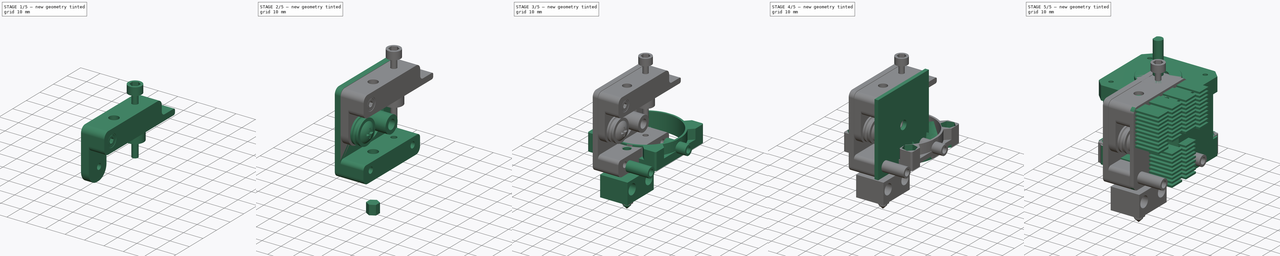
[diagram: build sequence overview — one tinted view per stage of 5, left to right]
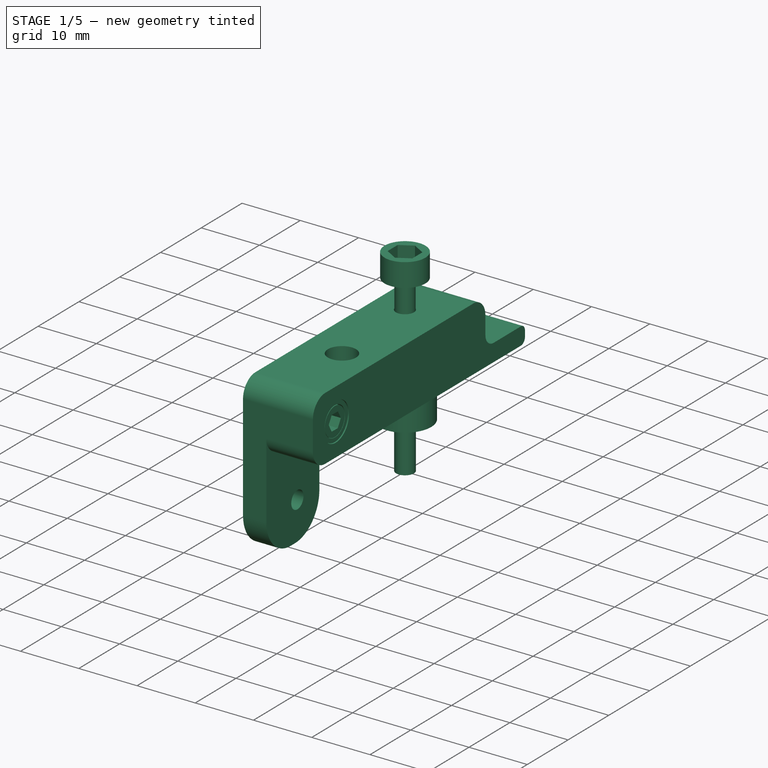
[diagram: stage 1 of 5 — iso view after this stage's code; geometry added in this stage tinted green]
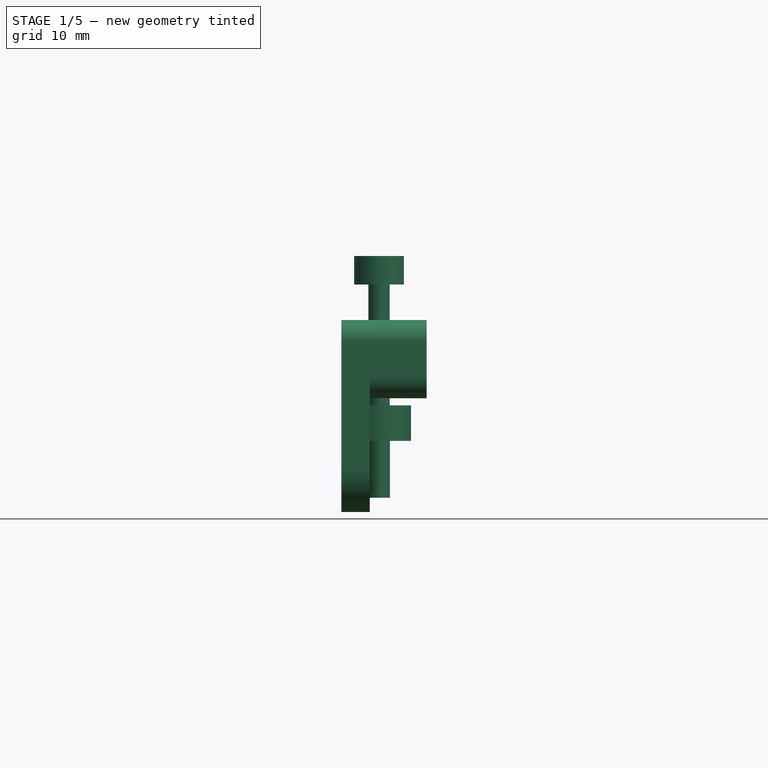
[diagram: stage 1 of 5 — front view after this stage's code; geometry added in this stage tinted green]
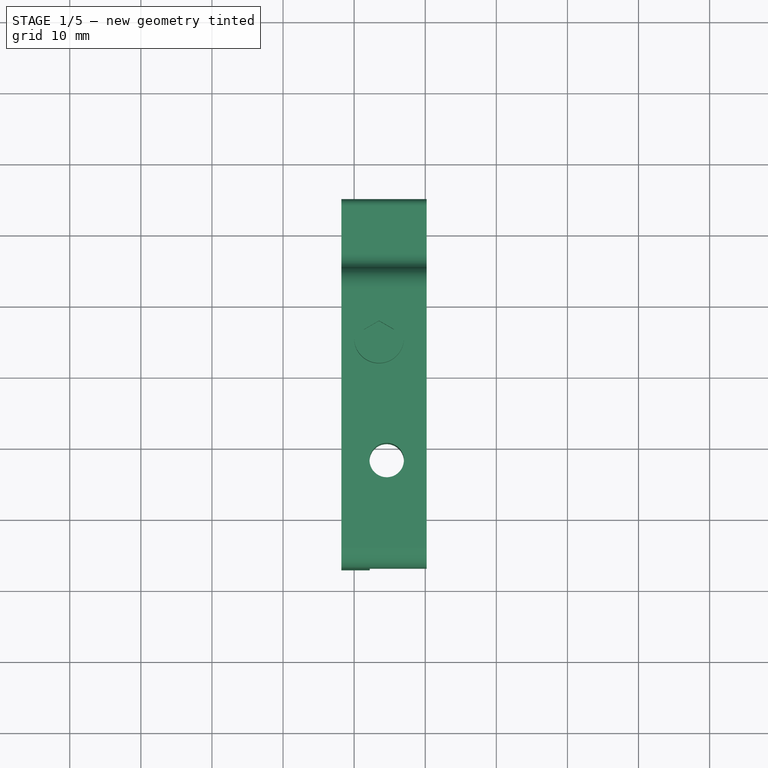
[diagram: stage 1 of 5 — top view after this stage's code; geometry added in this stage tinted green]
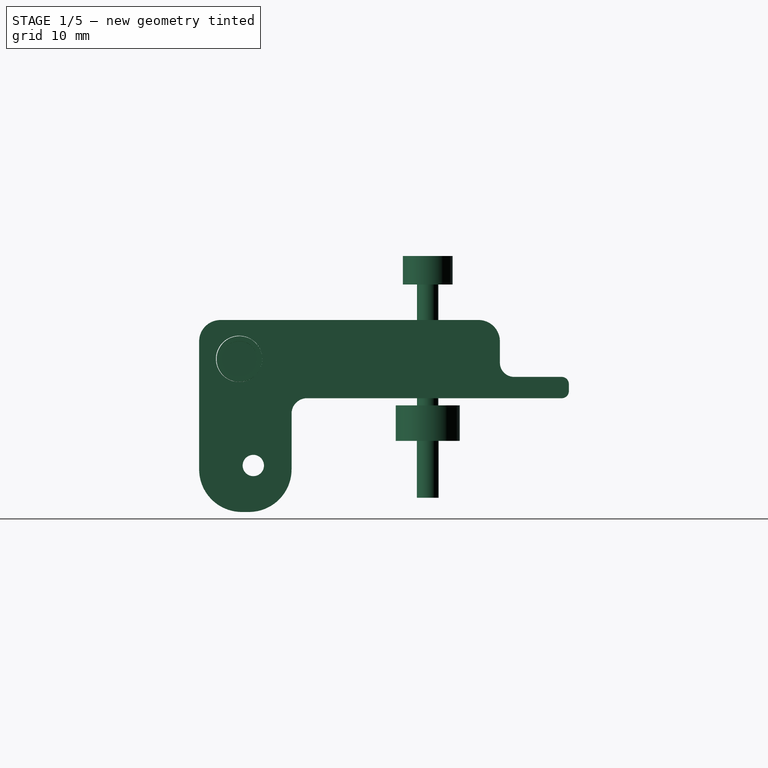
[diagram: stage 1 of 5 — right view after this stage's code; geometry added in this stage tinted green]
FCSTD DOCUMENT  (FreeCAD 0.16R6706 (Git))
Label: MK8
License: All rights reserved
LicenseURL: http://en.wikipedia.org/wiki/All_rights_reserved
objects: Sketcher::SketchObject×46, PartDesign::Pad×22, PartDesign::Pocket×19, PartDesign::Fillet×6, PartDesign::PolarPattern×6, PartDesign::Revolution×4, Part::Feature×3, App::DocumentObjectGroup×3, Part::Compound×2, Part::Chamfer×1, Part::Cut×1, Part::Helix×1, Part::Sweep×1, Part::FeaturePython×1, Part::MultiFuse×1, PartDesign::Chamfer×1
note: 160 computed .brp shape members not serialized (recipe doc carries the construction recipe); baked Part::Feature solids carry a one-line shape summary decoded from their .brp

FEATURE [PartDesign::Pad] Pad007
  Length = 12
  Length2 = 100
  Placement = pos=(-1.8,-16,21) rot=(0.57735,0.57735,0.57735;2.0944rad)
  Sketch = -> Sketch017
  Type = 0
FEATURE [PartDesign::Fillet] Fillet002
  Base = -> Pad007 [Edge32,Edge1]
  Placement = pos=(-1.8,-16,21) rot=(0.57735,0.57735,0.57735;2.0944rad)
  Radius = 6
FEATURE [Sketcher::SketchObject] Sketch019
  Placement = pos=(10.2,-16,21) rot=(0.57735,0.57735,0.57735;2.0944rad)
  Support = -> Fillet002 [Face5]
  sketch-geometry (5):
    g0: LineSegment StartX=-5.97493 StartY=10 StartZ=0 EndX=-22 EndY=10 EndZ=0
    g1: LineSegment StartX=-22 StartY=10 StartZ=0 EndX=-22 EndY=0 EndZ=0
    g2: LineSegment StartX=-8 StartY=0 StartZ=0 EndX=-8 EndY=8.00851 EndZ=0
    g3: ArcOfCircle CenterX=-5.36853 CenterY=7.35802 CenterZ=0 NormalX=0 NormalY=0 NormalZ=1 Radius=2.71068 StartAngle=1.79642 EndAngle=2.89925
    g4: ArcOfCircle CenterX=-15 CenterY=1e-12 CenterZ=0 NormalX=0 NormalY=0 NormalZ=1 Radius=7 StartAngle=3.14159 EndAngle=6.28319
  constraints (11):
    c: Horizontal(g0)
    c: Coincident(g1,g0)
    c: PointOnObject(g1,g-1)
    c: Vertical(g1)
    c: PointOnObject(g2,g-1)
    c: Vertical(g2)
    c: Coincident(g3,g2)
    c: Coincident(g3,g0)
    c: Coincident(g4,g1)
    c: Coincident(g4,g2)
    c: Radius(g4) = 7
FEATURE [PartDesign::Pocket] Pocket006
  Length = 8
  Placement = pos=(-1.8,-16,21) rot=(0.57735,0.57735,0.57735;2.0944rad)
  Sketch = -> Sketch019
  Type = 0
FEATURE [Sketcher::SketchObject] Sketch024
  Placement = pos=(-1.8,-16,41.9999) rot=(0,0,-1;1.5708rad)
  Support = -> Pocket006 [Face9]
  sketch-geometry (2):
    g0: Circle CenterX=6 CenterY=6.38137 CenterZ=0 NormalX=0 NormalY=0 NormalZ=1 Radius=2.41987
    g1: Circle CenterX=-11 CenterY=5.28169 CenterZ=0 NormalX=0 NormalY=0 NormalZ=1 Radius=1.55188
FEATURE [PartDesign::Pocket] Pocket008
  Length = 5
  Placement = pos=(-1.8,-16,21) rot=(0.57735,0.57735,0.57735;2.0944rad)
  Sketch = -> Sketch024
  Type = 1
FEATURE [PartDesign::Fillet] Fillet003
  Base = -> Pocket008 [Edge4]
  Placement = pos=(-1.8,-16,21) rot=(0.57735,0.57735,0.57735;2.0944rad)
  Radius = 3
FEATURE [PartDesign::Fillet] Fillet004
  Base = -> Fillet003 [Edge61,Edge56]
  Placement = pos=(-1.8,-16,21) rot=(0.57735,0.57735,0.57735;2.0944rad)
  Radius = 1
FEATURE [Sketcher::SketchObject] Sketch025
  Placement = pos=(0,-31.5,36.5) rot=(0.576467,0.576467,0.579113;2.0944rad)
  sketch-geometry (2):
    g0: Circle CenterX=0 CenterY=0 CenterZ=0 NormalX=0 NormalY=0 NormalZ=1 Radius=1.6
    g1: Circle CenterX=0 CenterY=0 CenterZ=0 NormalX=0 NormalY=0 NormalZ=1 Radius=3.2
  constraints (4):
    c: Coincident(g0,g-1)
    c: Radius(g0) = 1.6
    c: Coincident(g1,g-1)
    c: Radius(g1) = 3.2
FEATURE [PartDesign::Pad] Pad009
  Length = 10
  Length2 = 100
  Placement = pos=(0,-31.5,36.5) rot=(0.576467,0.576467,0.579113;2.0944rad)
  Sketch = -> Sketch025
  Type = 0
FEATURE [Sketcher::SketchObject] Sketch026
  Placement = pos=(9.99994,-31.4848,36.5306) rot=(0.576467,0.576467,0.579113;2.0944rad)
  Support = -> Pad009 [Face4]
  sketch-geometry (1):
    g0: Circle CenterX=0 CenterY=0 CenterZ=0 NormalX=0 NormalY=0 NormalZ=1 Radius=2.5
  constraints (2):
    c: PointOnObject(g0,g-2)
    c: Radius(g0) = 2.5
FEATURE [PartDesign::Pocket] Pocket009
  Length = 4
  Placement = pos=(0,-31.5,36.5) rot=(0.576467,0.576467,0.579113;2.0944rad)
  Sketch = -> Sketch026
  Type = 0
FEATURE [Sketcher::SketchObject] Sketch027
  Placement = pos=(0,-31.5,36.5) rot=(0.57735,0.57735,0.57735;2.0944rad)
  sketch-geometry (1):
    g0: Circle CenterX=0 CenterY=0 CenterZ=0 NormalX=0 NormalY=0 NormalZ=1 Radius=1.59261
  constraints (1):
    c: Coincident(g0,g-1)
FEATURE [PartDesign::Pad] Pad010
  Length = 6
  Length2 = 100
  Placement = pos=(0,-31.5,36.5) rot=(0.57735,0.57735,0.57735;2.0944rad)
  Sketch = -> Sketch027
  Type = 0
FEATURE [Sketcher::SketchObject] Sketch028
  Placement = pos=(6,-31.5,36.5) rot=(0.57735,0.57735,0.57735;2.0944rad)
  Support = -> Pad010 [Face3]
  sketch-geometry (1):
    g0: Circle CenterX=0 CenterY=0 CenterZ=0 NormalX=0 NormalY=0 NormalZ=1 Radius=2.41479
  constraints (1):
    c: Coincident(g0,g-1)
FEATURE [PartDesign::Pad] Pad011
  Length = 4
  Length2 = 100
  Placement = pos=(0,-31.5,36.5) rot=(0.57735,0.57735,0.57735;2.0944rad)
  Sketch = -> Sketch028
  Type = 0
FEATURE [Sketcher::SketchObject] Sketch029
  Placement = pos=(10,-31.5,36.5) rot=(0.57735,0.57735,0.57735;2.0944rad)
  Support = -> Pad011 [Face5]
  sketch-geometry (7):
    g0: LineSegment StartX=0.732717 StartY=-1.30886 StartZ=0 EndX=1.49987 EndY=-0.019881 EndZ=0
    g1: LineSegment StartX=1.49987 StartY=-0.019881 StartZ=0 EndX=0.767152 EndY=1.28898 EndZ=0
    g2: LineSegment StartX=0.767152 StartY=1.28898 StartZ=0 EndX=-0.732717 EndY=1.30886 EndZ=0
    g3: LineSegment StartX=-0.732717 StartY=1.30886 StartZ=0 EndX=-1.49987 EndY=0.019881 EndZ=0
    g4: LineSegment StartX=-1.49987 StartY=0.019881 StartZ=0 EndX=-0.767152 EndY=-1.28898 EndZ=0
    g5: LineSegment StartX=-0.767152 StartY=-1.28898 StartZ=0 EndX=0.732717 EndY=-1.30886 EndZ=0
    g6: Circle [constr] CenterX=0 CenterY=0 CenterZ=0 NormalX=0 NormalY=0 NormalZ=1 Radius=1.5
  constraints (15):
    c: Coincident(g0,g1)
    c: Coincident(g1,g2)
    c: Coincident(g2,g3)
    c: Coincident(g3,g4)
    c: Coincident(g4,g5)
    c: Coincident(g5,g0)
    c: Equal(g0, g1-g5) x5
    c: PointOnObject(g0,g6)
    c: PointOnObject(g1,g6)
    c: PointOnObject(g2,g6)
    c: PointOnObject(g3,g6)
    c: PointOnObject(g4,g6)
    c: PointOnObject(g5,g6)
    c: Coincident(g6,g-1)
    c: Radius(g6) = 1.5
FEATURE [PartDesign::Pocket] Pocket010
  Length = 3
  Placement = pos=(0,-31.5,36.5) rot=(0.57735,0.57735,0.57735;2.0944rad)
  Sketch = -> Sketch029
  Type = 0
FEATURE [Sketcher::SketchObject] Sketch030
  Placement = pos=(3.5,-5,46) rot=(0.57735,0.57735,0.57735;2.0944rad)
  sketch-geometry (11):
    g0: LineSegment StartX=1.5 StartY=1 StartZ=0 EndX=1.5 EndY=-16 EndZ=0
    g1: LineSegment StartX=1.5 StartY=1 StartZ=0 EndX=3.5 EndY=1 EndZ=0
    g2: LineSegment StartX=3.5 StartY=1 StartZ=0 EndX=3.5 EndY=5 EndZ=0
    g3: LineSegment StartX=3.5 StartY=5 StartZ=0 EndX=0 EndY=5 EndZ=0
    g4: LineSegment StartX=0 StartY=5 StartZ=0 EndX=0 EndY=-16 EndZ=0
    g5: LineSegment StartX=1.5 StartY=-16 StartZ=0 EndX=4.5 EndY=-16 EndZ=0
    g6: LineSegment StartX=4.5 StartY=-16 StartZ=0 EndX=4.5 EndY=-21 EndZ=0
    g7: LineSegment StartX=4.5 StartY=-21 StartZ=0 EndX=1.5251 EndY=-21 EndZ=0
    g8: LineSegment StartX=1.5251 StartY=-21 StartZ=0 EndX=1.5251 EndY=-29 EndZ=0
    g9: LineSegment StartX=1.5251 StartY=-29 StartZ=0 EndX=0 EndY=-29 EndZ=0
    g10: LineSegment StartX=0 StartY=-29 StartZ=0 EndX=0 EndY=-16 EndZ=0
  constraints (27):
    c: Vertical(g0)
    c: DistanceX(g-1,g0) = 1.5
    c: Horizontal(g1)
    c: DistanceX(g1,g1) = 2
    c: Coincident(g1,g0)
    c: Coincident(g1,g2)
    c: Vertical(g2)
    c: DistanceY(g2,g2) = 4
    c: Coincident(g3,g2)
    c: Horizontal(g3)
    c: Coincident(g4,g3)
    c: Vertical(g4)
    c: Coincident(g5,g0)
    c: Horizontal(g5)
    c: DistanceX(g5,g5) = 3
    c: Coincident(g6,g5)
    c: Vertical(g6)
    c: Coincident(g6,g7)
    c: Horizontal(g7)
    c: Coincident(g7,g8)
    c: Vertical(g8)
    c: Coincident(g8,g9)
    c: PointOnObject(g9,g-2)
    c: Horizontal(g9)
    c: Coincident(g9,g10)
    c: Coincident(g10,g4)
    c: Vertical(g10)
FEATURE [PartDesign::Revolution] Revolution002
  Angle = 360
  Axis = (0,0,1)
  Base = (3.5,-5,46)
  Placement = pos=(3.5,-5,46) rot=(0.57735,0.57735,0.57735;2.0944rad)
  ReferenceAxis = -> Sketch030 [V_Axis]
  Reversed = true
  Sketch = -> Sketch030
FEATURE [Sketcher::SketchObject] Sketch031
  Placement = pos=(3.5,-5,51) rot=(0,0,-1;1.5708rad)
  Support = -> Revolution002 [Face7]
  sketch-geometry (7):
    g0: LineSegment StartX=1.22806 StartY=-2.12706 StartZ=0 EndX=2.45612 EndY=0 EndZ=0
    g1: LineSegment StartX=2.45612 StartY=0 StartZ=0 EndX=1.22806 EndY=2.12706 EndZ=0
    g2: LineSegment StartX=1.22806 StartY=2.12706 StartZ=0 EndX=-1.22806 EndY=2.12706 EndZ=0
    g3: LineSegment StartX=-1.22806 StartY=2.12706 StartZ=0 EndX=-2.45612 EndY=0 EndZ=0
    g4: LineSegment StartX=-2.45612 StartY=0 StartZ=0 EndX=-1.22806 EndY=-2.12706 EndZ=0
    g5: LineSegment StartX=-1.22806 StartY=-2.12706 StartZ=0 EndX=1.22806 EndY=-2.12706 EndZ=0
    g6: Circle [constr] CenterX=0 CenterY=0 CenterZ=0 NormalX=0 NormalY=0 NormalZ=1 Radius=2.45612
  constraints (15):
    c: Coincident(g0,g1)
    c: Coincident(g1,g2)
    c: Coincident(g2,g3)
    c: Coincident(g3,g4)
    c: Coincident(g4,g5)
    c: Coincident(g5,g0)
    c: Equal(g0, g1-g5) x5
    c: PointOnObject(g0,g6)
    c: PointOnObject(g1,g6)
    c: PointOnObject(g2,g6)
    c: PointOnObject(g3,g6)
    c: PointOnObject(g4,g6)
    c: PointOnObject(g5,g6)
    c: Coincident(g6,g-1)
    c: Horizontal(g5)
FEATURE [PartDesign::Pocket] Pocket011
  Length = 3
  Placement = pos=(3.5,-5,46) rot=(0.57735,0.57735,0.57735;2.0944rad)
  Sketch = -> Sketch031
  Type = 0
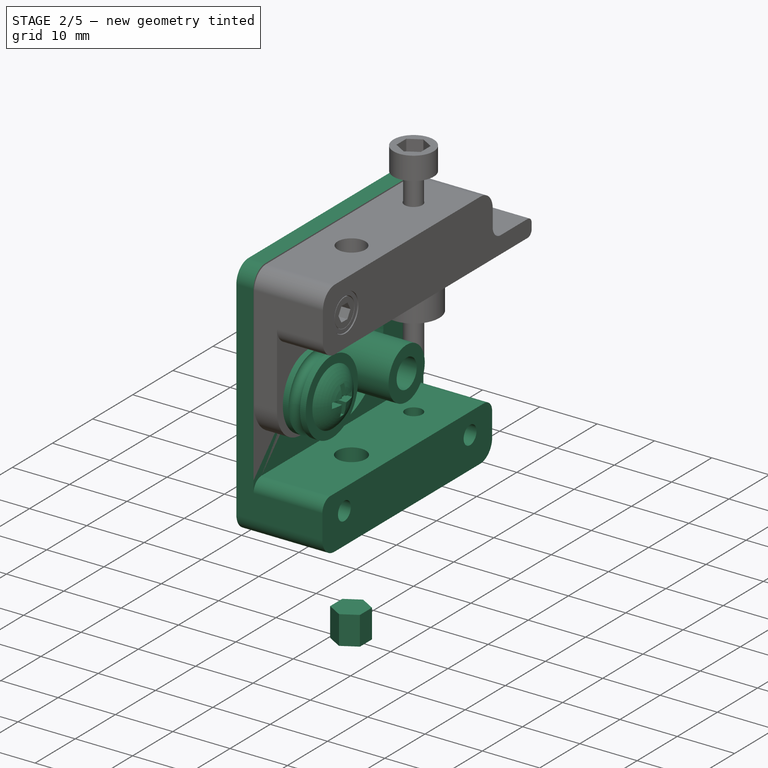
[diagram: stage 2 of 5 — iso view after this stage's code; geometry added in this stage tinted green]
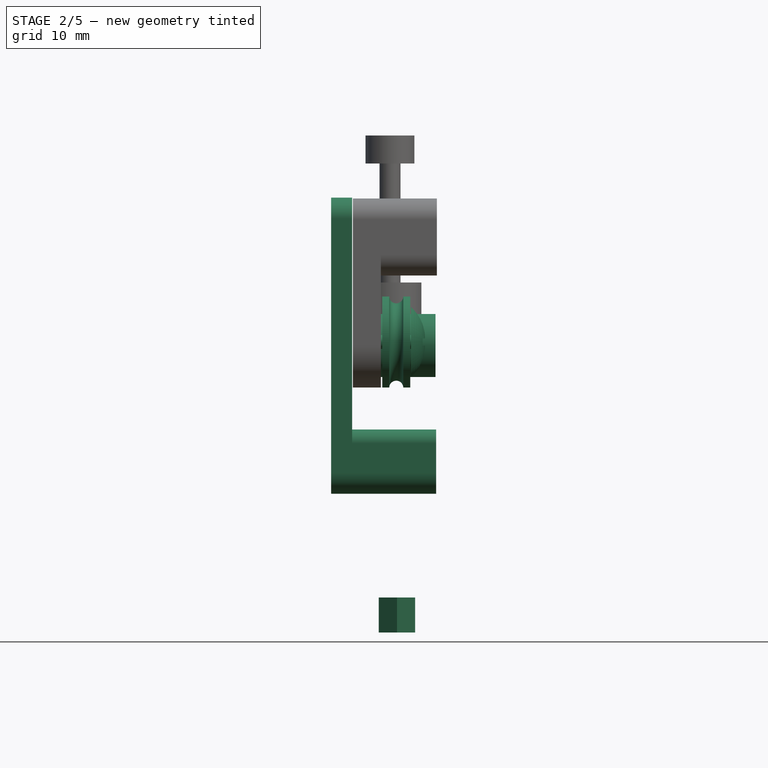
[diagram: stage 2 of 5 — front view after this stage's code; geometry added in this stage tinted green]
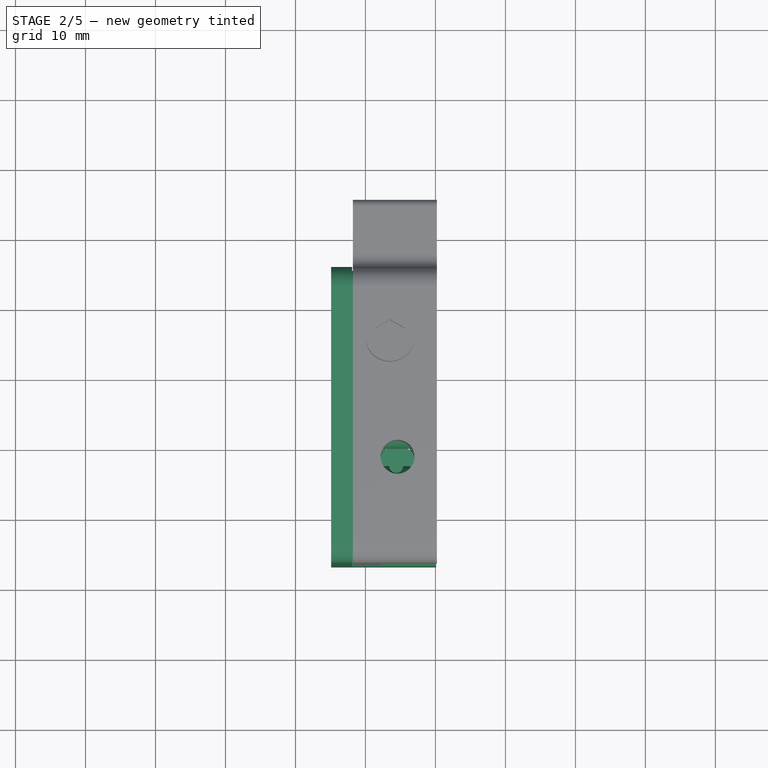
[diagram: stage 2 of 5 — top view after this stage's code; geometry added in this stage tinted green]
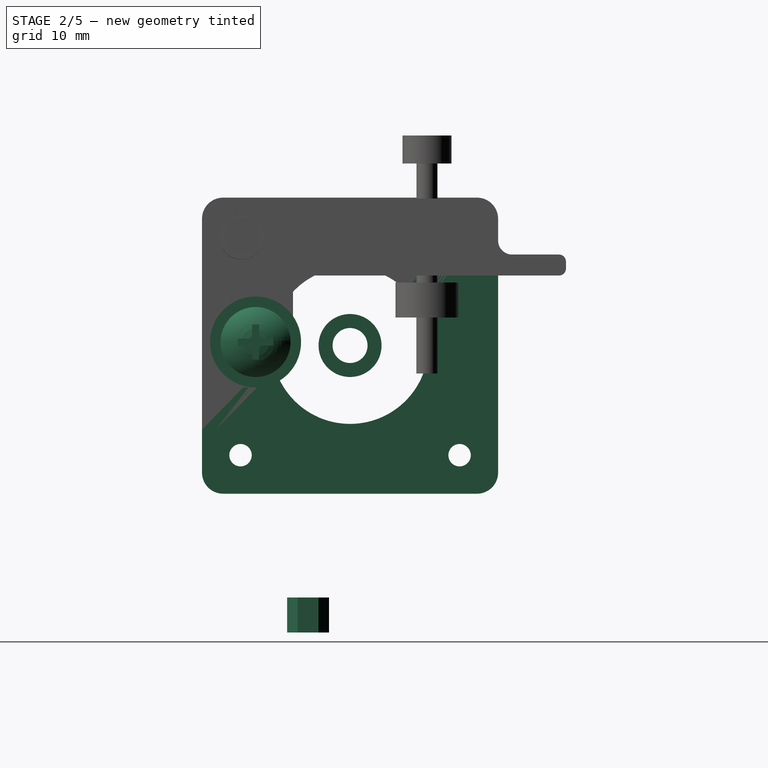
[diagram: stage 2 of 5 — right view after this stage's code; geometry added in this stage tinted green]
FEATURE [Part::Feature] Chamfer001  label="Nema-17-motor-40mm-final"
  Placement = pos=(-45,-16,21) rot=(0,1,0;1.5708rad)
  shape: bbox 60.1 x 42.3 x 42.3 mm, 55 faces (baked)
FEATURE [Sketcher::SketchObject] Sketch014
  Placement = pos=(0,-16,21) rot=(0.57735,0.57735,0.57735;2.0944rad)
  sketch-geometry (2):
    g0: Circle CenterX=0 CenterY=0 CenterZ=0 NormalX=0 NormalY=0 NormalZ=1 Radius=2.5
    g1: Circle CenterX=0 CenterY=0 CenterZ=0 NormalX=0 NormalY=0 NormalZ=1 Radius=4.5
  constraints (4):
    c: Coincident(g0,g-1)
    c: Radius(g0) = 2.5
    c: Coincident(g1,g-1)
    c: Radius(g1) = 4.5
FEATURE [PartDesign::Pad] Pad006
  Length = 10
  Length2 = 100
  Placement = pos=(0,-16,21) rot=(0.57735,0.57735,0.57735;2.0944rad)
  Sketch = -> Sketch014
  Type = 0
FEATURE [Sketcher::SketchObject] Sketch015
  Placement = pos=(-4.9,-16,21) rot=(0.57735,0.57735,0.57735;2.0944rad)
  sketch-geometry (9):
    g0: LineSegment StartX=-21.15 StartY=21.1275 StartZ=0 EndX=21.15 EndY=21.1275 EndZ=0
    g1: LineSegment StartX=21.15 StartY=21.1275 StartZ=0 EndX=21.15 EndY=-21.1725 EndZ=0
    g2: LineSegment StartX=21.15 StartY=-21.1725 StartZ=0 EndX=-21.15 EndY=-21.1725 EndZ=0
    g3: LineSegment StartX=-21.15 StartY=-21.1725 StartZ=0 EndX=-21.15 EndY=21.1275 EndZ=0
    g4: Circle CenterX=-15.65 CenterY=15.6275 CenterZ=0 NormalX=0 NormalY=0 NormalZ=1 Radius=1.6
    g5: Circle CenterX=15.65 CenterY=15.6275 CenterZ=0 NormalX=0 NormalY=0 NormalZ=1 Radius=1.6
    g6: Circle CenterX=-15.65 CenterY=-15.6725 CenterZ=0 NormalX=0 NormalY=0 NormalZ=1 Radius=1.6
    g7: Circle CenterX=15.65 CenterY=-15.6725 CenterZ=0 NormalX=0 NormalY=0 NormalZ=1 Radius=1.6
    g8: Circle CenterX=0 CenterY=0 CenterZ=0 NormalX=0 NormalY=0 NormalZ=1 Radius=11.2
  constraints (25):
    c: Coincident(g0,g1)
    c: Coincident(g1,g2)
    c: Coincident(g2,g3)
    c: Coincident(g3,g0)
    c: Horizontal(g0)
    c: Horizontal(g2)
    c: Vertical(g1)
    c: Vertical(g3)
    c: Symmetric(g0,g0,g-2)
    c: DistanceX(g0,g0) = 42.3
    c: DistanceY(g1,g1) = 42.3
    c: Radius(g4) = 1.6
    c: Equal(g4,g6)
    c: Equal(g4,g7)
    c: DistanceY(g4,g0) = 5.5
    c: DistanceX(g0,g4) = 5.5
    c: DistanceY(g2,g6) = 5.5
    c: DistanceX(g2,g6) = 5.5
    c: DistanceY(g1,g7) = 5.5
    c: DistanceX(g7,g1) = 5.5
    c: Radius(g5) = 1.6
    c: DistanceY(g5,g0) = 5.5
    c: DistanceX(g5,g0) = 5.5
    c: Coincident(g8,g-1)
    c: Radius(g8) = 11.2
FEATURE [PartDesign::Pad] Pad
  Length = 15
  Length2 = 100
  Placement = pos=(-4.9,-16,21) rot=(0.57735,0.57735,0.57735;2.0944rad)
  Sketch = -> Sketch015
  Type = 0
FEATURE [Sketcher::SketchObject] Sketch
  Placement = pos=(10.1,-16,21) rot=(0.57735,0.57735,0.57735;2.0944rad)
  Support = -> Pad [Face11]
  sketch-geometry (4):
    g0: LineSegment StartX=-21.15 StartY=21.2044 StartZ=0 EndX=21.15 EndY=21.2044 EndZ=0
    g1: LineSegment StartX=21.15 StartY=21.2044 StartZ=0 EndX=21.15 EndY=-12 EndZ=0
    g2: LineSegment StartX=21.15 StartY=-12 StartZ=0 EndX=-21.15 EndY=-12 EndZ=0
    g3: LineSegment StartX=-21.15 StartY=-12 StartZ=0 EndX=-21.15 EndY=21.2044 EndZ=0
  constraints (10):
    c: Coincident(g0,g1)
    c: Coincident(g1,g2)
    c: Coincident(g2,g3)
    c: Coincident(g3,g0)
    c: Horizontal(g0)
    c: Horizontal(g2)
    c: Vertical(g1)
    c: Vertical(g3)
    c: DistanceX(g0,g0) = 42.3
    c: Symmetric(g0,g0,g-2)
FEATURE [PartDesign::Pocket] Pocket003
  Length = 12
  Placement = pos=(-4.9,-16,21) rot=(0.57735,0.57735,0.57735;2.0944rad)
  Sketch = -> Sketch
  Type = 0
FEATURE [PartDesign::Fillet] Fillet
  Base = -> Pocket003 [Edge2,Edge4,Edge13,Edge24]
  Placement = pos=(-4.9,-16,21) rot=(0.57735,0.57735,0.57735;2.0944rad)
  Radius = 3
FEATURE [PartDesign::Fillet] Fillet001
  Base = -> Fillet [Edge29,Edge32]
  Placement = pos=(-4.9,-16,21) rot=(0.57735,0.57735,0.57735;2.0944rad)
  Radius = 2
FEATURE [Sketcher::SketchObject] Sketch016
  Placement = pos=(-1.9,-16,21) rot=(0.57735,0.57735,0.57735;2.0944rad)
  Support = -> Fillet001 [Face1]
  sketch-geometry (1):
    g0: Circle CenterX=15.6374 CenterY=15.6446 CenterZ=0 NormalX=0 NormalY=0 NormalZ=1 Radius=3.175
  constraints (1):
    c: Radius(g0) = 3.175
FEATURE [PartDesign::Pocket] Pocket004
  Length = 2
  Placement = pos=(-4.9,-16,21) rot=(0.57735,0.57735,0.57735;2.0944rad)
  Sketch = -> Sketch016
  Type = 0
FEATURE [Sketcher::SketchObject] Sketch017
  Placement = pos=(-1.8,-16,21) rot=(0.57735,0.57735,0.57735;2.0944rad)
  sketch-geometry (14):
    g0: LineSegment StartX=-18.15 StartY=20.9999 StartZ=0 EndX=18.15 EndY=20.9999 EndZ=0
    g1: LineSegment StartX=21.15 StartY=17.9999 StartZ=0 EndX=21.15 EndY=15 EndZ=0
    g2: LineSegment StartX=-21.15 StartY=-6 StartZ=0 EndX=-21.15 EndY=17.9999 EndZ=0
    g3: LineSegment StartX=-5.98091 StartY=10 StartZ=0 EndX=30.85 EndY=10 EndZ=0
    g4: ArcOfCircle CenterX=-18.15 CenterY=17.9999 CenterZ=0 NormalX=0 NormalY=0 NormalZ=1 Radius=3 StartAngle=1.5708 EndAngle=3.14159
    g5: ArcOfCircle CenterX=18.15 CenterY=17.9999 CenterZ=0 NormalX=0 NormalY=0 NormalZ=1 Radius=3 StartAngle=0 EndAngle=1.5708
    g6: LineSegment StartX=30.85 StartY=10 StartZ=0 EndX=30.85 EndY=13 EndZ=0
    g7: LineSegment StartX=30.85 StartY=13 StartZ=0 EndX=23.15 EndY=13 EndZ=0
    g8: ArcOfCircle CenterX=23.15 CenterY=15 CenterZ=0 NormalX=0 NormalY=0 NormalZ=1 Radius=2 StartAngle=3.14159 EndAngle=4.71239
    g9: LineSegment StartX=-21.15 StartY=-6 StartZ=0 EndX=-8.15 EndY=-6 EndZ=0
    g10: LineSegment StartX=-8.15 StartY=-6 StartZ=0 EndX=-8.15 EndY=7.83091 EndZ=0
    g11: Circle CenterX=-15.5317 CenterY=15.537 CenterZ=0 NormalX=0 NormalY=0 NormalZ=1 Radius=3.25
    g12: Circle CenterX=-13.5317 CenterY=0.537041 CenterZ=0 NormalX=0 NormalY=0 NormalZ=1 Radius=1.5
    g13: ArcOfCircle CenterX=-5.98091 CenterY=7.83091 CenterZ=0 NormalX=0 NormalY=0 NormalZ=1 Radius=2.16909 StartAngle=1.5708 EndAngle=3.14159
  constraints (16):
    c: Horizontal(g3)
    c: Radius(g4) = 3
    c: DistanceX(g2,g1) = 42.3
    c: Coincident(g3,g6)
    c: Vertical(g6)
    c: Coincident(g7,g6)
    c: Horizontal(g7)
    c: Tangent(g1,g8) = -1.5708
    c: Tangent(g7,g8) = 1.5708
    c: Horizontal(g9)
    c: Radius(g11) = 3.25
    c: Radius(g12) = 1.5
    c: DistanceY(g12,g11) = 15
    c: DistanceX(g11,g12) = 2
    c: Tangent(g10,g13) = 1.5708
    c: Tangent(g3,g13) = 1.5708
FEATURE [Sketcher::SketchObject] Sketch018
  Placement = pos=(-4.9,-16,9) rot=(0,0,-1;1.5708rad)
  Support = -> Pocket004 [Face2]
  sketch-geometry (2):
    g0: Circle CenterX=6 CenterY=9.48012 CenterZ=0 NormalX=0 NormalY=0 NormalZ=1 Radius=2.5
    g1: Circle CenterX=-11 CenterY=8.4272 CenterZ=0 NormalX=0 NormalY=0 NormalZ=1 Radius=1.5
  constraints (2):
    c: Radius(g0) = 2.5
    c: Radius(g1) = 1.5
FEATURE [PartDesign::Pocket] Pocket005
  Length = 5
  Placement = pos=(-4.9,-16,21) rot=(0.57735,0.57735,0.57735;2.0944rad)
  Sketch = -> Sketch018
  Type = 1
FEATURE [Sketcher::SketchObject] Sketch020
  Placement = pos=(4.4,-29.5,21.5) rot=(0,0,1;0rad)
  sketch-geometry (6):
    g0: LineSegment StartX=-2 StartY=0 StartZ=0 EndX=2 EndY=0 EndZ=0
    g1: LineSegment StartX=2 StartY=0 StartZ=0 EndX=2 EndY=-6.5 EndZ=0
    g2: LineSegment StartX=2 StartY=-6.5 StartZ=0 EndX=1 EndY=-6.5 EndZ=0
    g3: LineSegment StartX=-2 StartY=-6.5 StartZ=0 EndX=-2 EndY=0 EndZ=0
    g4: ArcOfCircle CenterX=0 CenterY=-6.52471 CenterZ=0 NormalX=0 NormalY=0 NormalZ=1 Radius=1.00031 StartAngle=0.0247095 EndAngle=3.11688
    g5: LineSegment StartX=-1 StartY=-6.5 StartZ=0 EndX=-2 EndY=-6.5 EndZ=0
  constraints (14):
    c: PointOnObject(g0,g-1)
    c: Coincident(g0,g1)
    c: Vertical(g1)
    c: Coincident(g1,g2)
    c: Coincident(g5,g3)
    c: Vertical(g3)
    c: Horizontal(g2)
    c: PointOnObject(g4,g-2)
    c: Coincident(g2,g4)
    c: Coincident(g5,g4)
    c: Tangent(g2,g5)
    c: DistanceY(g1,g1) = 6.5
    c: DistanceX(g0,g0) = 4
    c: Coincident(g0,g3)
FEATURE [PartDesign::Revolution] Revolution
  Angle = 360
  Axis = (1,0,0)
  Base = (4.4,-29.5,21.5)
  Placement = pos=(4.4,-29.5,21.5) rot=(0,0,1;0rad)
  ReferenceAxis = -> Sketch020 [H_Axis]
  Reversed = true
  Sketch = -> Sketch020
FEATURE [Sketcher::SketchObject] Sketch022
  Placement = pos=(0.5,-29.5,21.5) rot=(1,0,0;1.5708rad)
  sketch-geometry (6):
    g0: LineSegment StartX=0 StartY=0 StartZ=0 EndX=8 EndY=0 EndZ=0
    g1: LineSegment StartX=0 StartY=0 StartZ=0 EndX=0 EndY=-1 EndZ=0
    g2: LineSegment StartX=0 StartY=-1 StartZ=0 EndX=6 EndY=-1 EndZ=0
    g3: LineSegment StartX=6 StartY=-1 StartZ=0 EndX=6 EndY=-3 EndZ=0
    g4: LineSegment StartX=6 StartY=-3 StartZ=0 EndX=6 EndY=-5 EndZ=0
    g5: ArcOfCircle CenterX=2 CenterY=-0.5 CenterZ=0 NormalX=0 NormalY=0 NormalZ=1 Radius=6.0208 StartAngle=5.43903 EndAngle=6.36633
  constraints (14):
    c: PointOnObject(g0,g-1)
    c: Horizontal(g0)
    c: DistanceX(g0,g0) = 8
    c: Coincident(g0,g-1)
    c: Coincident(g-1,g1)
    c: Vertical(g1)
    c: Coincident(g1,g2)
    c: Horizontal(g2)
    c: Coincident(g2,g3)
    c: Vertical(g3)
    c: Coincident(g3,g4)
    c: Vertical(g4)
    c: Coincident(g5,g4)
    c: Coincident(g5,g0)
FEATURE [PartDesign::Revolution] Revolution001
  Angle = 360
  Axis = (1,0,0)
  Base = (0.5,-29.5,21.5)
  Placement = pos=(0.5,-29.5,21.5) rot=(1,0,0;1.5708rad)
  ReferenceAxis = -> Sketch022 [H_Axis]
  Reversed = true
  Sketch = -> Sketch022
FEATURE [Sketcher::SketchObject] Sketch023
  Placement = pos=(9,-29.5,21.5) rot=(0.579113,0.576467,0.576467;2.0944rad)
  sketch-geometry (12):
    g0: LineSegment StartX=-0.5 StartY=2.5 StartZ=0 EndX=0.5 EndY=2.5 EndZ=0
    g1: LineSegment StartX=0.5 StartY=2.5 StartZ=0 EndX=0.5 EndY=0.5 EndZ=0
    g2: LineSegment StartX=0.5 StartY=-2.5 StartZ=0 EndX=-0.5 EndY=-2.5 EndZ=0
    g3: LineSegment StartX=-0.5 StartY=-2.5 StartZ=0 EndX=-0.5 EndY=-0.5 EndZ=0
    g4: LineSegment StartX=-2.5 StartY=0.5 StartZ=0 EndX=-0.5 EndY=0.5 EndZ=0
    g5: LineSegment StartX=2.5 StartY=0.5 StartZ=0 EndX=2.5 EndY=-0.5 EndZ=0
    g6: LineSegment StartX=2.5 StartY=-0.5 StartZ=0 EndX=0.5 EndY=-0.5 EndZ=0
    g7: LineSegment StartX=-2.5 StartY=-0.5 StartZ=0 EndX=-2.5 EndY=0.5 EndZ=0
    g8: LineSegment StartX=0.5 StartY=0.5 StartZ=0 EndX=2.5 EndY=0.5 EndZ=0
    g9: LineSegment StartX=-0.5 StartY=0.5 StartZ=0 EndX=-0.5 EndY=2.5 EndZ=0
    g10: LineSegment StartX=0.5 StartY=-0.5 StartZ=0 EndX=0.5 EndY=-2.5 EndZ=0
    g11: LineSegment StartX=-0.5 StartY=-0.5 StartZ=0 EndX=-2.5 EndY=-0.5 EndZ=0
  constraints (24):
    c: Coincident(g0,g1)
    c: Coincident(g10,g2)
    c: Coincident(g2,g3)
    c: Coincident(g9,g0)
    c: Horizontal(g0)
    c: Horizontal(g2)
    c: Vertical(g1)
    c: Vertical(g3)
    c: Coincident(g8,g5)
    c: Coincident(g5,g6)
    c: Coincident(g11,g7)
    c: Coincident(g7,g4)
    c: Horizontal(g4)
    c: Horizontal(g6)
    c: Vertical(g5)
    c: Vertical(g7)
    c: Tangent(g4,g8)
    c: Coincident(g9,g4)
    c: Tangent(g3,g9)
    c: Coincident(g1,g8)
    c: Tangent(g1,g10)
    c: Coincident(g6,g10)
    c: Coincident(g11,g3)
    c: Tangent(g6,g11)
FEATURE [PartDesign::Pad] Pad008
  Length = 2
  Length2 = 100
  Placement = pos=(9,-29.5,21.5) rot=(0.579113,0.576467,0.576467;2.0944rad)
  Reversed = true
  Sketch = -> Sketch023
  Type = 0
FEATURE [Part::Cut] Cut
  Base = -> Revolution001
  Tool = -> Pad008
FEATURE [Sketcher::SketchObject] Sketch047
  Placement = pos=(4.5,-22,-15) rot=(0,0,1;0rad)
  sketch-geometry (7):
    g0: LineSegment StartX=0 StartY=3 StartZ=0 EndX=-2.59808 EndY=1.5 EndZ=0
    g1: LineSegment StartX=-2.59808 StartY=1.5 StartZ=0 EndX=-2.59808 EndY=-1.5 EndZ=0
    g2: LineSegment StartX=-2.59808 StartY=-1.5 StartZ=0 EndX=0 EndY=-3 EndZ=0
    g3: LineSegment StartX=0 StartY=-3 StartZ=0 EndX=2.59808 EndY=-1.5 EndZ=0
    g4: LineSegment StartX=2.59808 StartY=-1.5 StartZ=0 EndX=2.59808 EndY=1.5 EndZ=0
    g5: LineSegment StartX=2.59808 StartY=1.5 StartZ=0 EndX=0 EndY=3 EndZ=0
    g6: Circle [constr] CenterX=0 CenterY=0 CenterZ=0 NormalX=0 NormalY=0 NormalZ=1 Radius=3
  constraints (14):
    c: Coincident(g0,g1)
    c: Coincident(g1,g2)
    c: Coincident(g2,g3)
    c: Coincident(g3,g4)
    c: Coincident(g4,g5)
    c: Coincident(g5,g0)
    c: Equal(g0, g1-g5) x5
    c: PointOnObject(g0,g6)
    c: PointOnObject(g1,g6)
    c: PointOnObject(g2,g6)
    c: PointOnObject(g3,g6)
    c: PointOnObject(g4,g6)
    c: PointOnObject(g5,g6)
    c: PointOnObject(g6,g-1)
FEATURE [PartDesign::Pad] Pad020
  Length = 5
  Length2 = 100
  Placement = pos=(4.5,-22,-15) rot=(0,0,1;0rad)
  Reversed = true
  Sketch = -> Sketch047
  Type = 0
FEATURE [Part::Compound] Compound001
  Links = -> [Pad006,Pocket005,Revolution,Cut,Fillet004,Pocket009,Pocket010,Pocket011]
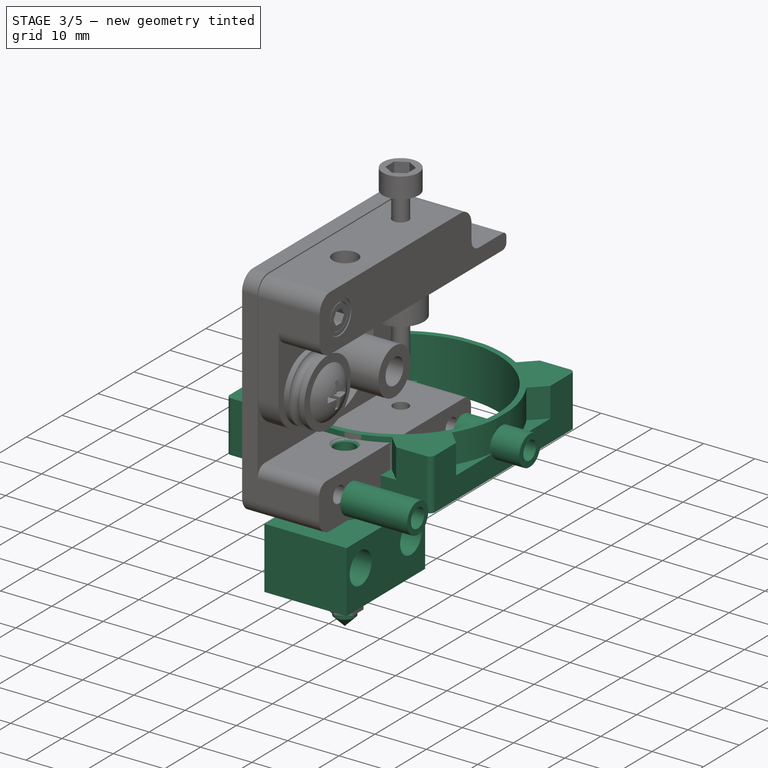
[diagram: stage 3 of 5 — iso view after this stage's code; geometry added in this stage tinted green]
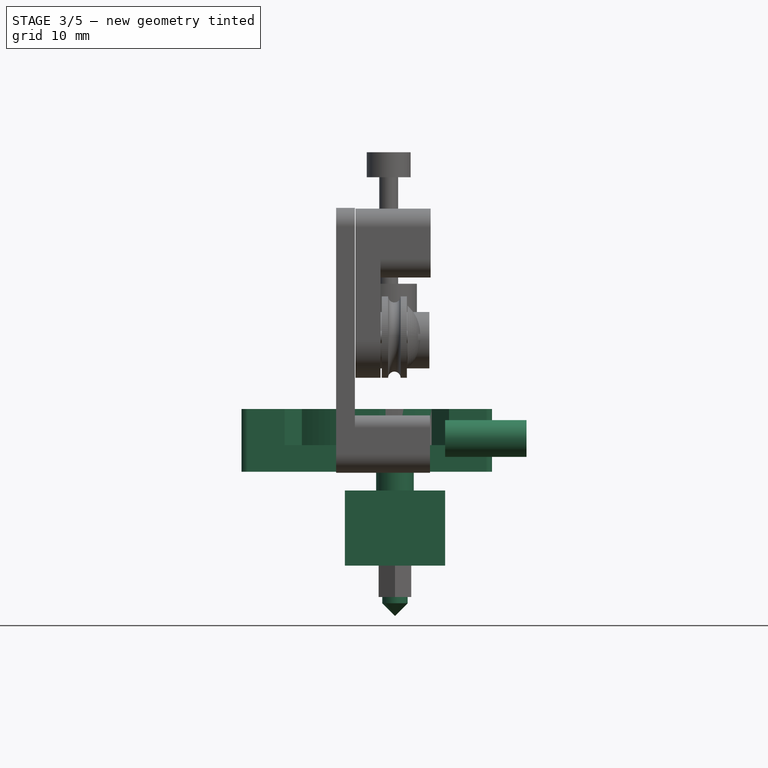
[diagram: stage 3 of 5 — front view after this stage's code; geometry added in this stage tinted green]
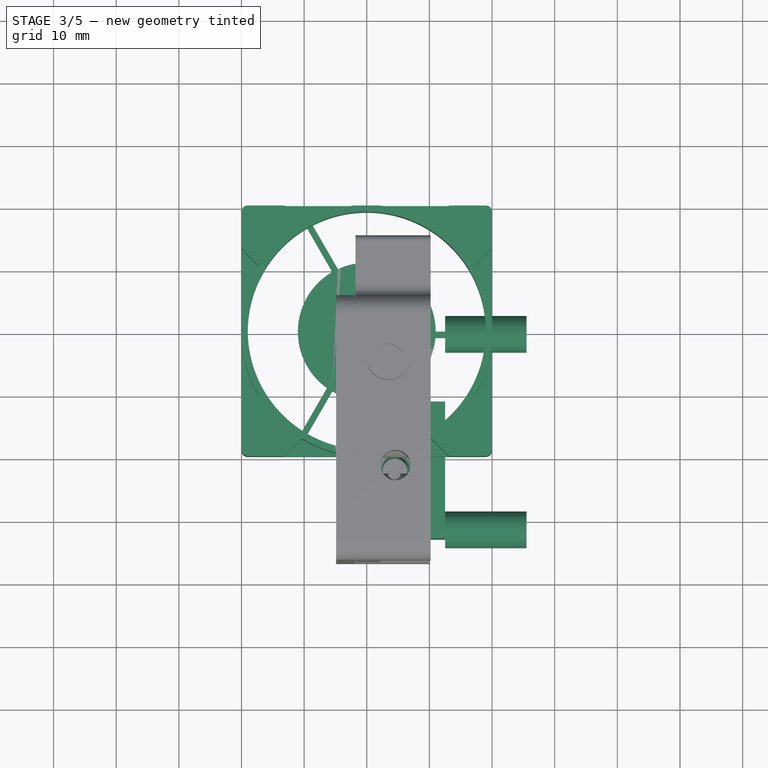
[diagram: stage 3 of 5 — top view after this stage's code; geometry added in this stage tinted green]
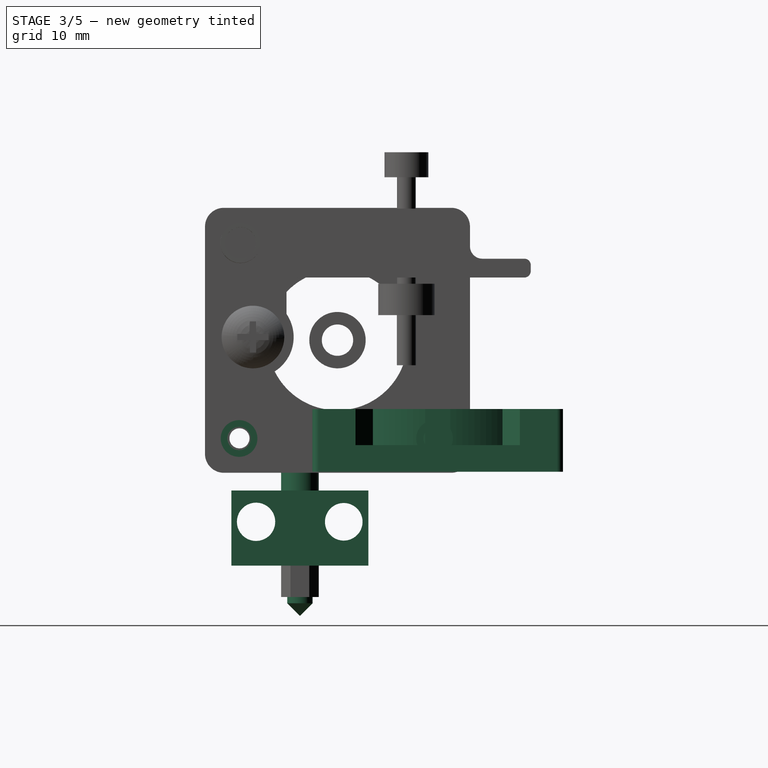
[diagram: stage 3 of 5 — right view after this stage's code; geometry added in this stage tinted green]
FEATURE [App::DocumentObjectGroup] Group  label="blade-src"
  Group = -> [Helix,Sweep,Fusion]
FEATURE [Sketcher::SketchObject] Sketch036  label="hub-main-base-sketch"
  sketch-geometry (1):
    g0: Circle CenterX=0 CenterY=0 CenterZ=0 NormalX=0 NormalY=0 NormalZ=1 Radius=11
  constraints (2):
    c: Coincident(g0,g-1)
    c: Radius(g0) = 11
FEATURE [PartDesign::Pad] Pad015  label="hub-main-base"
  Length = 1.8
  Length2 = 100
  Sketch = -> Sketch036
  Type = 0
FEATURE [Sketcher::SketchObject] Sketch037  label="support-arm-sketch"
  ExternalGeometry = -> [Pad015]
  Placement = pos=(0,0,1.8) rot=(0,0,1;0rad)
  Support = -> Pad015 [Face3]
  sketch-geometry (5):
    g0: LineSegment StartX=10.9 StartY=0 StartZ=0 EndX=19 EndY=0 EndZ=0
    g1: LineSegment StartX=19 StartY=0 StartZ=0 EndX=19 EndY=-1 EndZ=0
    g2: LineSegment StartX=19 StartY=-1 StartZ=0 EndX=10.9 EndY=-1 EndZ=0
    g3: GeomPoint [constr] X=11 Y=0 Z=0
    g4: LineSegment StartX=10.9 StartY=-1 StartZ=0 EndX=10.9 EndY=0 EndZ=0
  constraints (14):
    c: Horizontal(g0)
    c: Coincident(g0,g1)
    c: Vertical(g1)
    c: Coincident(g1,g2)
    c: Horizontal(g2)
    c: Equal(g2,g0)
    c: DistanceY(g1) = -1
    c: DistanceX(g2) = -8.1
    c: PointOnObject(g0,g-1)
    c: PointOnObject(g3,g0)
    c: PointOnObject(g3,g-3)
    c: DistanceX(g0,g3) = 0.1
    c: Coincident(g4,g2)
    c: Coincident(g4,g0)
FEATURE [PartDesign::Pad] Pad016  label="support-arm"
  Length = 1.8
  Length2 = 100
  Reversed = true
  Sketch = -> Sketch037
  Type = 0
FEATURE [PartDesign::PolarPattern] PolarPattern  label="support-arms-array"
  Angle = 360
  Axis = -> Sketch037 [N_Axis]
  Occurrences = 3
  Originals = -> [Pad016]
FEATURE [Sketcher::SketchObject] Sketch038  label="case-main-body-sketch"
  sketch-geometry (8):
    g0: LineSegment StartX=-19 StartY=20 StartZ=0 EndX=19 EndY=20 EndZ=0
    g1: LineSegment StartX=20 StartY=19 StartZ=0 EndX=20 EndY=-19 EndZ=0
    g2: LineSegment StartX=19 StartY=-20 StartZ=0 EndX=-19 EndY=-20 EndZ=0
    g3: LineSegment StartX=-20 StartY=-19 StartZ=0 EndX=-20 EndY=19 EndZ=0
    g4: ArcOfCircle CenterX=-19 CenterY=19 CenterZ=0 NormalX=0 NormalY=0 NormalZ=1 Radius=1 StartAngle=1.5708 EndAngle=3.14159
    g5: ArcOfCircle CenterX=19 CenterY=19 CenterZ=0 NormalX=0 NormalY=0 NormalZ=1 Radius=1 StartAngle=0 EndAngle=1.5708
    g6: ArcOfCircle CenterX=-19 CenterY=-19 CenterZ=0 NormalX=0 NormalY=0 NormalZ=1 Radius=1 StartAngle=3.14159 EndAngle=4.71239
    g7: ArcOfCircle CenterX=19 CenterY=-19 CenterZ=0 NormalX=0 NormalY=0 NormalZ=1 Radius=1 StartAngle=4.71239 EndAngle=6.28319
  constraints (20):
    c: Horizontal(g0)
    c: Horizontal(g2)
    c: Vertical(g1)
    c: Vertical(g3)
    c: Equal(g0,g3)
    c: Tangent(g0,g4)
    c: Tangent(g3,g4)
    c: Radius(g4) = 1
    c: Tangent(g0,g5)
    c: Tangent(g1,g5)
    c: Equal(g5,g4)
    c: DistanceX(g3,g1) = 40
    c: Tangent(g2,g6)
    c: Tangent(g3,g6)
    c: Tangent(g1,g7)
    c: Tangent(g2,g7)
    c: Equal(g6,g7)
    c: Equal(g7,g5)
    c: Equal(g3,g0)
    c: Symmetric(g4,g7,g-1)
FEATURE [PartDesign::Pad] Pad017  label="case-main-body"
  Length = 10
  Length2 = 100
  Sketch = -> Sketch038
  Type = 0
FEATURE [Sketcher::SketchObject] Sketch039  label="case-cutout-1-sketch"
  Placement = pos=(0,0,10) rot=(0,0,1;0rad)
  Support = -> Pad017 [Face10]
  sketch-geometry (1):
    g0: Circle CenterX=0 CenterY=0 CenterZ=0 NormalX=0 NormalY=0 NormalZ=1 Radius=19
  constraints (2):
    c: Coincident(g0,g-1)
    c: Radius(g0) = 19
FEATURE [PartDesign::Pocket] Pocket012  label="case-cutout-1"
  Length = 5
  Sketch = -> Sketch039
  Type = 1
FEATURE [Sketcher::SketchObject] Sketch040  label="case-cutout-2-sketch"
  ExternalGeometry = -> [Pocket012]
  Placement = pos=(0,0,10) rot=(0,0,1;0rad)
  Support = -> Pocket012 [Face5]
  sketch-geometry (7):
    g0: Circle [constr] CenterX=0 CenterY=0 CenterZ=0 NormalX=0 NormalY=0 NormalZ=1 Radius=20.1
    g1: LineSegment StartX=-17.2291 StartY=10.3523 StartZ=0 EndX=-23 EndY=16.1232 EndZ=0
    g2: LineSegment StartX=-23 StartY=16.1232 StartZ=0 EndX=-23 EndY=-16.1232 EndZ=0
    g3: LineSegment [constr] StartX=-22.2291 StartY=10.3523 StartZ=0 EndX=-17.2291 EndY=10.3523 EndZ=0
    g4: LineSegment [constr] StartX=-17.2291 StartY=10.3523 StartZ=0 EndX=0 EndY=0 EndZ=0
    g5: LineSegment StartX=-23 StartY=-16.1232 StartZ=0 EndX=-17.2291 EndY=-10.3523 EndZ=0
    g6: ArcOfCircle CenterX=0 CenterY=0 CenterZ=0 NormalX=0 NormalY=0 NormalZ=1 Radius=20.1 StartAngle=2.60054 EndAngle=3.68264
  constraints (19):
    c: Coincident(g0,g-1)
    c: Radius(g0) = 20.1
    c: Vertical(g2)
    c: PointOnObject(g1,g0)
    c: Horizontal(g3)
    c: Coincident(g3,g1)
    c: Coincident(g4,g-1)
    c: Coincident(g4,g1)
    c: Angle(g-1,g4) = 2.60054
    c: DistanceX(g3) = 5
    c: Angle(g1,g3) = 0.785398
    c: Coincident(g2,g1)
    c: DistanceX(g-3,g1) = -3
    c: Coincident(g2,g5)
    c: Symmetric(g2,g1,g-1)
    c: Symmetric(g1,g5,g-1)
    c: Coincident(g6,g-1)
    c: Coincident(g6,g1)
    c: Coincident(g6,g5)
FEATURE [PartDesign::Pocket] Pocket013  label="case-cutout-2"
  Length = 5.75
  Sketch = -> Sketch040
  Type = 0
FEATURE [PartDesign::PolarPattern] PolarPattern001  label="case-cutout-2-array"
  Angle = 360
  Axis = -> Sketch040 [N_Axis]
  Occurrences = 4
  Originals = -> [Pocket013]
FEATURE [App::DocumentObjectGroup] Group001  label="fan-cover-src"
  Group = -> [Pad017,Pocket012,Pocket013,PolarPattern001,Pocket014,PolarPattern002,Pocket015,PolarPattern003,Pocket016,PolarPattern004,Pocket017,PolarPattern005]
FEATURE [App::DocumentObjectGroup] Group002  label="support-arms-src"
  Group = -> [Pad015,Pad016,PolarPattern]
FEATURE [Part::Feature] Fusion003  label="fan-40x40mm-final"
  Placement = pos=(25.5,-16,21) rot=(0,1,0;1.5708rad)
  shape: bbox 10 x 40 x 40 mm, 172 faces (baked)
FEATURE [Sketcher::SketchObject] Sketch043
  Placement = pos=(12.5,-0.5,5.3) rot=(0.57735,0.57735,0.57735;2.0944rad)
  sketch-geometry (4):
    g0: Circle CenterX=0 CenterY=0 CenterZ=0 NormalX=0 NormalY=0 NormalZ=1 Radius=1.77747
    g1: Circle CenterX=-31.2158 CenterY=0 CenterZ=0 NormalX=0 NormalY=0 NormalZ=1 Radius=1.85475
    g2: Circle CenterX=0 CenterY=0 CenterZ=0 NormalX=0 NormalY=0 NormalZ=1 Radius=2.92942
    g3: Circle CenterX=-31.2158 CenterY=0 CenterZ=0 NormalX=0 NormalY=0 NormalZ=1 Radius=2.92942
  constraints (5):
    c: Coincident(g0,g-1)
    c: PointOnObject(g1,g-1)
    c: Coincident(g2,g-1)
    c: Coincident(g3,g1)
    c: Equal(g3,g2)
FEATURE [PartDesign::Pad] Pad018
  Length = 13
  Length2 = 100
  Placement = pos=(12.5,-0.5,5.3) rot=(0.57735,0.57735,0.57735;2.0944rad)
  Sketch = -> Sketch043
  Type = 0
FEATURE [Sketcher::SketchObject] Sketch044
  Placement = pos=(4.5,-22,-4) rot=(0.57735,0.57735,0.57735;2.0944rad)
  sketch-geometry (7):
    g0: LineSegment StartX=2 StartY=0 StartZ=0 EndX=2 EndY=12.5174 EndZ=0
    g1: LineSegment StartX=2.50964 StartY=13 StartZ=0 EndX=3 EndY=13 EndZ=0
    g2: LineSegment StartX=3 StartY=0 StartZ=0 EndX=3 EndY=13 EndZ=0
    g3: LineSegment StartX=2 StartY=12.5174 StartZ=0 EndX=2.50964 EndY=13 EndZ=0
    g4: LineSegment StartX=3 StartY=0 StartZ=0 EndX=3 EndY=-5 EndZ=0
    g5: LineSegment StartX=2 StartY=0 StartZ=0 EndX=2 EndY=-5 EndZ=0
    g6: LineSegment StartX=2 StartY=-5 StartZ=0 EndX=3 EndY=-5 EndZ=0
  constraints (16):
    c: PointOnObject(g0,g-1)
    c: Vertical(g0)
    c: Horizontal(g1)
    c: PointOnObject(g2,g-1)
    c: PointOnObject(g2,g1)
    c: Vertical(g2)
    c: Coincident(g1,g2)
    c: Coincident(g1,g3)
    c: Coincident(g0,g3)
    c: Coincident(g4,g2)
    c: Vertical(g4)
    c: Coincident(g5,g0)
    c: Vertical(g5)
    c: Coincident(g6,g5)
    c: Coincident(g6,g4)
    c: Horizontal(g6)
FEATURE [PartDesign::Revolution] Revolution003
  Angle = 360
  Axis = (0,0,1)
  Base = (4.5,-22,-4)
  Placement = pos=(4.5,-22,-4) rot=(0.57735,0.57735,0.57735;2.0944rad)
  ReferenceAxis = -> Sketch044 [V_Axis]
  Reversed = true
  Sketch = -> Sketch044
FEATURE [Sketcher::SketchObject] Sketch045
  Placement = pos=(4.5,-22,-15) rot=(0,0,1;0rad)
  sketch-geometry (5):
    g0: LineSegment StartX=-8 StartY=-10.9316 StartZ=0 EndX=8 EndY=-10.9316 EndZ=0
    g1: LineSegment StartX=8 StartY=-10.9316 StartZ=0 EndX=8 EndY=10.9316 EndZ=0
    g2: LineSegment StartX=8 StartY=10.9316 StartZ=0 EndX=-8 EndY=10.9316 EndZ=0
    g3: LineSegment StartX=-8 StartY=10.9316 StartZ=0 EndX=-8 EndY=-10.9316 EndZ=0
    g4: Circle CenterX=0 CenterY=0 CenterZ=0 NormalX=0 NormalY=0 NormalZ=1 Radius=2.02275
  constraints (12):
    c: Coincident(g0,g1)
    c: Coincident(g1,g2)
    c: Coincident(g2,g3)
    c: Coincident(g3,g0)
    c: Horizontal(g0)
    c: Horizontal(g2)
    c: Vertical(g1)
    c: Vertical(g3)
    c: Symmetric(g0,g0,g-2)
    c: Symmetric(g1,g0,g-1)
    c: DistanceX(g2,g2) = 16
    c: PointOnObject(g4,g-1)
FEATURE [PartDesign::Pad] Pad019
  Length = 12
  Length2 = 100
  Placement = pos=(4.5,-22,-15) rot=(0,0,1;0rad)
  Sketch = -> Sketch045
  Type = 0
FEATURE [Sketcher::SketchObject] Sketch046
  Placement = pos=(12.5,-22,-15) rot=(0.57735,0.57735,0.57735;2.0944rad)
  Support = -> Pad019 [Face2]
  sketch-geometry (2):
    g0: Circle CenterX=-7 CenterY=7 CenterZ=0 NormalX=0 NormalY=0 NormalZ=1 Radius=3.05559
    g1: Circle CenterX=7 CenterY=7 CenterZ=0 NormalX=0 NormalY=0 NormalZ=1 Radius=3
  constraints (1):
    c: Radius(g1) = 3
FEATURE [PartDesign::Pocket] Pocket018
  Length = 5
  Placement = pos=(4.5,-22,-15) rot=(0,0,1;0rad)
  Sketch = -> Sketch046
  Type = 1
FEATURE [Sketcher::SketchObject] Sketch048
  Placement = pos=(4.5,-22,-20) rot=(1,0,0;3.14159rad)
  Support = -> Pad020 [Face8]
  sketch-geometry (1):
    g0: Circle CenterX=0 CenterY=0 CenterZ=0 NormalX=0 NormalY=0 NormalZ=1 Radius=2.02544
FEATURE [PartDesign::Pad] Pad021
  Length = 3
  Length2 = 100
  Placement = pos=(4.5,-22,-15) rot=(0,0,1;0rad)
  Sketch = -> Sketch048
  Type = 0
FEATURE [PartDesign::Chamfer] Chamfer002
  Base = -> Pad021 [Edge21]
  Placement = pos=(4.5,-22,-15) rot=(0,0,1;0rad)
  Size = 2
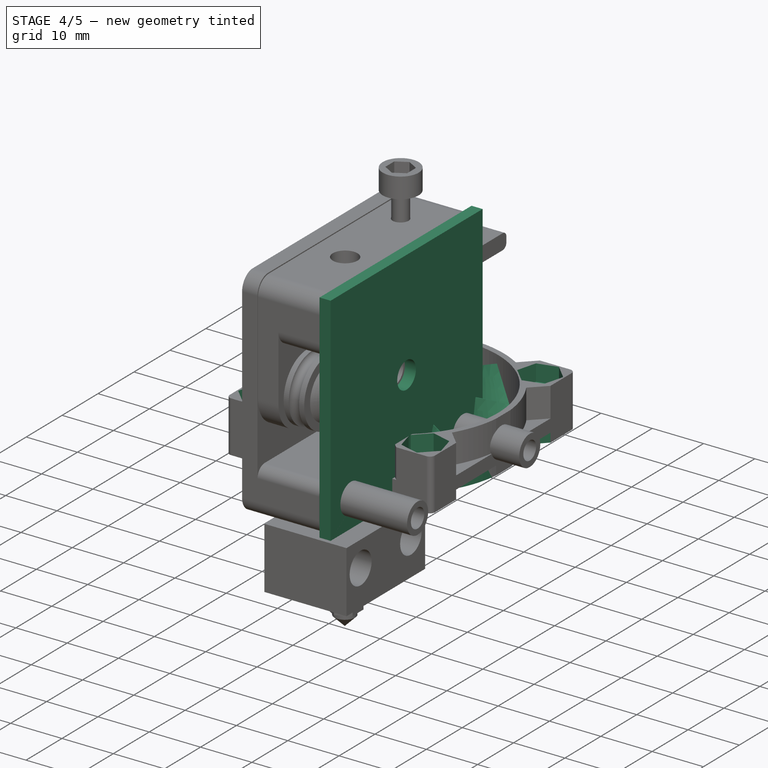
[diagram: stage 4 of 5 — iso view after this stage's code; geometry added in this stage tinted green]
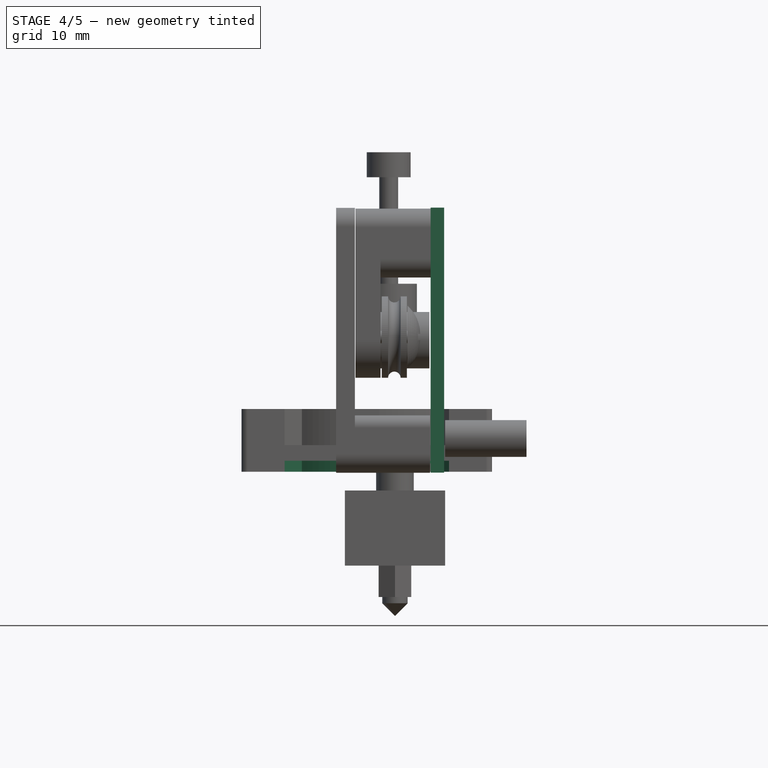
[diagram: stage 4 of 5 — front view after this stage's code; geometry added in this stage tinted green]
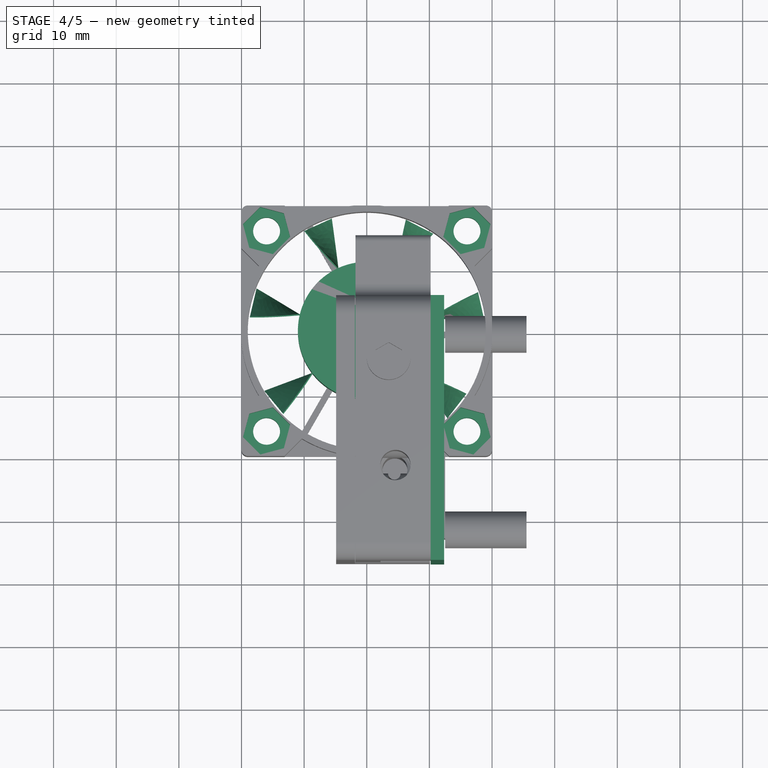
[diagram: stage 4 of 5 — top view after this stage's code; geometry added in this stage tinted green]
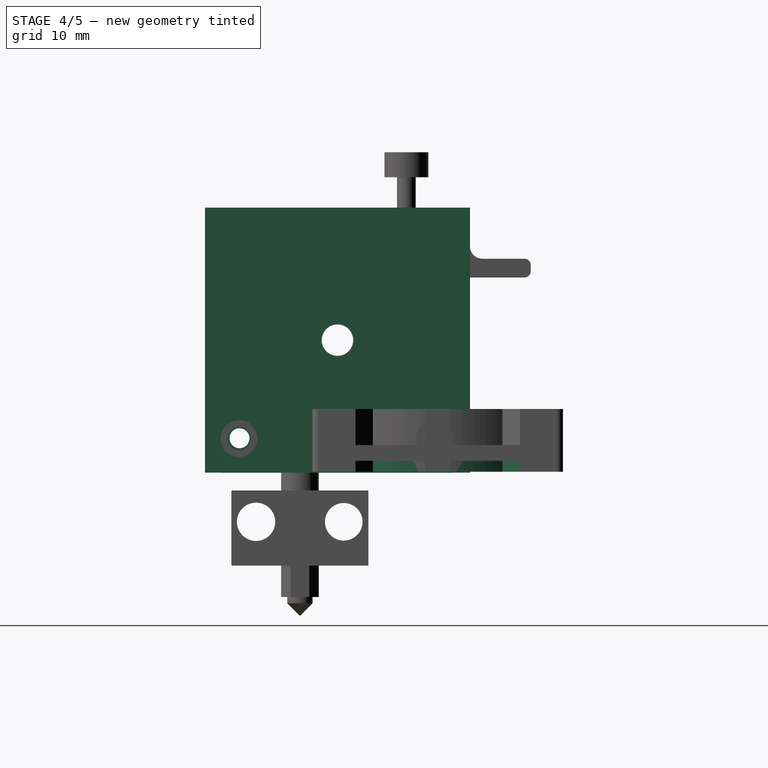
[diagram: stage 4 of 5 — right view after this stage's code; geometry added in this stage tinted green]
FEATURE [Sketcher::SketchObject] Sketch032
  Placement = pos=(10.2,-16,21) rot=(0.57735,0.57735,0.57735;2.0944rad)
  sketch-geometry (7):
    g0: LineSegment StartX=-21.15 StartY=21.15 StartZ=0 EndX=21.15 EndY=21.15 EndZ=0
    g1: LineSegment StartX=21.15 StartY=21.15 StartZ=0 EndX=21.15 EndY=-21.15 EndZ=0
    g2: LineSegment StartX=21.15 StartY=-21.15 StartZ=0 EndX=-21.15 EndY=-21.15 EndZ=0
    g3: LineSegment StartX=-21.15 StartY=-21.15 StartZ=0 EndX=-21.15 EndY=21.15 EndZ=0
    g4: Circle CenterX=0 CenterY=0 CenterZ=0 NormalX=0 NormalY=0 NormalZ=1 Radius=2.6
    g5: Circle CenterX=-15.6364 CenterY=-15.6592 CenterZ=0 NormalX=0 NormalY=0 NormalZ=1 Radius=1.59399
    g6: Circle CenterX=15.638 CenterY=-15.7187 CenterZ=0 NormalX=0 NormalY=0 NormalZ=1 Radius=1.66084
  constraints (13):
    c: Coincident(g0,g1)
    c: Coincident(g1,g2)
    c: Coincident(g2,g3)
    c: Coincident(g3,g0)
    c: Horizontal(g0)
    c: Horizontal(g2)
    c: Vertical(g1)
    c: Vertical(g3)
    c: Symmetric(g0,g0,g-2)
    c: Symmetric(g2,g0,g-1)
    c: DistanceX(g0,g0) = 42.3
    c: DistanceY(g1,g1) = 42.3
    c: Radius(g4) = 2.6
FEATURE [PartDesign::Pad] Pad012
  Length = 2.15
  Length2 = 100
  Placement = pos=(10.2,-16,21) rot=(0.57735,0.57735,0.57735;2.0944rad)
  Sketch = -> Sketch032
  Type = 0
FEATURE [Sketcher::SketchObject] Sketch034  label="blade-section-sketch"
  sketch-geometry (4):
    g0: LineSegment StartX=0 StartY=4 StartZ=0 EndX=0.2 EndY=4 EndZ=0
    g1: LineSegment StartX=0.2 StartY=4 StartZ=0 EndX=0.2 EndY=-4 EndZ=0
    g2: LineSegment StartX=0.2 StartY=-4 StartZ=0 EndX=0 EndY=-4 EndZ=0
    g3: LineSegment StartX=0 StartY=-4 StartZ=0 EndX=0 EndY=4 EndZ=0
  constraints (12):
    c: Coincident(g0,g1)
    c: Coincident(g1,g2)
    c: Coincident(g2,g3)
    c: Coincident(g3,g0)
    c: Horizontal(g0)
    c: Horizontal(g2)
    c: Vertical(g1)
    c: Vertical(g3)
    c: PointOnObject(g0,g-2)
    c: Symmetric(g0,g2,g-1)
    c: DistanceY(g3) = 8
    c: DistanceX(g0) = 0.2
FEATURE [Part::Helix] Helix
  Angle = 0
  Height = 7.8
  LocalCoord = 1
  Pitch = 78
  Placement = pos=(-1,0,0) rot=(0,0,1;0rad)
  Radius = 1
  Style = 1
FEATURE [Part::Sweep] Sweep  label="blade-orig"
  Frenet = true
  Sections = -> [Sketch034]
  Solid = true
  Spine = -> Helix [Edge1]
  Transition = 1
FEATURE [Part::Feature] Sweep001  label="blade-master"
  Placement = pos=(-0.253354,-10.8943,4.1) rot=(1,0,0;1.5708rad)
  shape: bbox 4.889 x 7.8 x 8.212 mm, 6 faces (baked)
FEATURE [Sketcher::SketchObject] Sketch035  label="blade-hub-sketch"
  sketch-geometry (1):
    g0: Circle CenterX=0 CenterY=0 CenterZ=0 NormalX=0 NormalY=0 NormalZ=1 Radius=11
  constraints (2):
    c: Coincident(g0,g-1)
    c: Radius(g0) = 11
FEATURE [PartDesign::Pad] Pad014  label="blade-hub"
  Length = 8.2
  Length2 = 100
  Sketch = -> Sketch035
  Type = 0
FEATURE [Part::FeaturePython] Array  label="blades-array"  # Draft array (typed FeaturePython)
  Angle = 360
  ArrayType = 1
  Axis = (0,0,1)
  Base = -> Sweep001
  Center = (0,0,0)
  IntervalX = (1,0,0)
  IntervalY = (0,1,0)
  IntervalZ = (0,0,1)
  NumberPolar = 7
  NumberX = 2
  NumberY = 2
  NumberZ = 1
FEATURE [Part::MultiFuse] Fusion  label="blades"
  Placement = pos=(0,0,1.8) rot=(0,0,1;0rad)
  Shapes = -> [Pad014,Array]
FEATURE [Sketcher::SketchObject] Sketch041  label="case-cutout-3-sketch"
  ExternalGeometry = -> [PolarPattern001]
  Placement = pos=(0,0,0) rot=(1,0,0;3.14159rad)
  Support = -> PolarPattern001 [Face2]
  sketch-geometry (7):
    g0: Circle [constr] CenterX=0 CenterY=0 CenterZ=0 NormalX=0 NormalY=0 NormalZ=1 Radius=20.1
    g1: LineSegment StartX=-17.2291 StartY=10.3523 StartZ=0 EndX=-21 EndY=14.1232 EndZ=0
    g2: LineSegment StartX=-21 StartY=14.1232 StartZ=0 EndX=-21 EndY=-14.1232 EndZ=0
    g3: LineSegment [constr] StartX=-22.2291 StartY=10.3523 StartZ=0 EndX=-17.2291 EndY=10.3523 EndZ=0
    g4: LineSegment [constr] StartX=-17.2291 StartY=10.3523 StartZ=0 EndX=0 EndY=0 EndZ=0
    g5: LineSegment StartX=-21 StartY=-14.1232 StartZ=0 EndX=-17.2291 EndY=-10.3523 EndZ=0
    g6: ArcOfCircle CenterX=0 CenterY=0 CenterZ=0 NormalX=0 NormalY=0 NormalZ=1 Radius=20.1 StartAngle=2.60054 EndAngle=3.68264
  constraints (19):
    c: Coincident(g0,g-1)
    c: Radius(g0) = 20.1
    c: Vertical(g2)
    c: PointOnObject(g1,g0)
    c: Horizontal(g3)
    c: Coincident(g3,g1)
    c: Coincident(g4,g-1)
    c: Coincident(g4,g1)
    c: Angle(g-1,g4) = 2.60054
    c: DistanceX(g3) = 5
    c: Angle(g1,g3) = 0.785398
    c: Coincident(g2,g1)
    c: Coincident(g2,g5)
    c: Symmetric(g2,g1,g-1)
    c: Symmetric(g1,g5,g-1)
    c: Coincident(g6,g-1)
    c: Coincident(g6,g1)
    c: Coincident(g6,g5)
    c: DistanceX(g1,g-3) = 1
FEATURE [PartDesign::Pocket] Pocket014  label="case-cutout-3"
  Length = 1.75
  Sketch = -> Sketch041
  Type = 0
FEATURE [PartDesign::PolarPattern] PolarPattern002  label="case-cutout-3-array"
  Angle = 360
  Axis = -> Sketch041 [N_Axis]
  Occurrences = 4
  Originals = -> [Pocket014]
FEATURE [Sketcher::SketchObject] Sketch042  label="top-nut-cutout-sketch"
  Placement = pos=(0,0,10) rot=(0,0,1;0rad)
  Support = -> PolarPattern002 [Face10]
  sketch-geometry (9):
    g0: LineSegment [constr] StartX=-15.9948 StartY=15.9948 StartZ=0 EndX=0 EndY=0 EndZ=0
    g1: LineSegment [constr] StartX=-15.9948 StartY=15.9948 StartZ=0 EndX=-13.237 EndY=18.7525 EndZ=0
    g2: LineSegment [constr] StartX=-15.9948 StartY=15.9948 StartZ=0 EndX=-12.2276 EndY=14.9854 EndZ=0
    g3: LineSegment StartX=-13.237 StartY=18.7525 StartZ=0 EndX=-12.2276 EndY=14.9854 EndZ=0
    g4: LineSegment StartX=-13.237 StartY=18.7525 StartZ=0 EndX=-17.0041 EndY=19.7619 EndZ=0
    g5: LineSegment StartX=-17.0041 StartY=19.7619 StartZ=0 EndX=-19.7619 EndY=17.0041 EndZ=0
    g6: LineSegment StartX=-12.2276 StartY=14.9854 StartZ=0 EndX=-14.9854 EndY=12.2276 EndZ=0
    g7: LineSegment StartX=-14.9854 StartY=12.2276 StartZ=0 EndX=-18.7525 EndY=13.237 EndZ=0
    g8: LineSegment StartX=-19.7619 StartY=17.0041 StartZ=0 EndX=-18.7525 EndY=13.237 EndZ=0
  constraints (22):
    c: Coincident(g0,g-1)
    c: Angle(g-1,g0) = 2.35619
    c: Distance(g0) = 22.62
    c: PointOnObject(g0,g1)
    c: Perpendicular(g1,g0)
    c: Coincident(g1,g0)
    c: Coincident(g2,g0)
    c: Equal(g1,g2)
    c: Angle(g2,g1) = 1.0472
    c: Coincident(g3,g2)
    c: Coincident(g3,g1)
    c: Distance(g1) = 3.9
    c: Coincident(g4,g1)
    c: Symmetric(g4,g2,g1)
    c: Coincident(g5,g4)
    c: Symmetric(g4,g5,g0)
    c: Coincident(g6,g2)
    c: Symmetric(g6,g2,g0)
    c: Coincident(g7,g6)
    c: Symmetric(g7,g1,g0)
    c: Coincident(g8,g7)
    c: Coincident(g8,g5)
FEATURE [PartDesign::Pocket] Pocket015  label="top-nut-cutout"
  Length = 3.24
  Sketch = -> Sketch042
  Type = 0
FEATURE [PartDesign::PolarPattern] PolarPattern003  label="top-nut-cutouts-array"
  Angle = 360
  Axis = -> Sketch042 [N_Axis]
  Occurrences = 4
  Originals = -> [Pocket015]
FEATURE [Sketcher::SketchObject] Sketch009  label="bottom-nut-cutout-sketch001"
  Placement = pos=(0,0,0) rot=(1,0,0;3.14159rad)
  Support = -> PolarPattern003 [Face2]
  sketch-geometry (9):
    g0: LineSegment [constr] StartX=-15.9948 StartY=15.9948 StartZ=0 EndX=0 EndY=0 EndZ=0
    g1: LineSegment [constr] StartX=-15.9948 StartY=15.9948 StartZ=0 EndX=-13.237 EndY=18.7525 EndZ=0
    g2: LineSegment [constr] StartX=-15.9948 StartY=15.9948 StartZ=0 EndX=-12.2276 EndY=14.9854 EndZ=0
    g3: LineSegment StartX=-13.237 StartY=18.7525 StartZ=0 EndX=-12.2276 EndY=14.9854 EndZ=0
    g4: LineSegment StartX=-13.237 StartY=18.7525 StartZ=0 EndX=-17.0041 EndY=19.7619 EndZ=0
    g5: LineSegment StartX=-17.0041 StartY=19.7619 StartZ=0 EndX=-19.7619 EndY=17.0041 EndZ=0
    g6: LineSegment StartX=-12.2276 StartY=14.9854 StartZ=0 EndX=-14.9854 EndY=12.2276 EndZ=0
    g7: LineSegment StartX=-14.9854 StartY=12.2276 StartZ=0 EndX=-18.7525 EndY=13.237 EndZ=0
    g8: LineSegment StartX=-19.7619 StartY=17.0041 StartZ=0 EndX=-18.7525 EndY=13.237 EndZ=0
  constraints (22):
    c: Coincident(g0,g-1)
    c: Angle(g-1,g0) = 2.35619
    c: Distance(g0) = 22.62
    c: PointOnObject(g0,g1)
    c: Perpendicular(g1,g0)
    c: Coincident(g1,g0)
    c: Coincident(g2,g0)
    c: Equal(g1,g2)
    c: Angle(g2,g1) = 1.0472
    c: Coincident(g3,g2)
    c: Coincident(g3,g1)
    c: Distance(g1) = 3.9
    c: Coincident(g4,g1)
    c: Symmetric(g4,g2,g1)
    c: Coincident(g5,g4)
    c: Symmetric(g4,g5,g0)
    c: Coincident(g6,g2)
    c: Symmetric(g6,g2,g0)
    c: Coincident(g7,g6)
    c: Symmetric(g7,g1,g0)
    c: Coincident(g8,g7)
    c: Coincident(g8,g5)
FEATURE [PartDesign::Pocket] Pocket016  label="bottom-nut-cutout"
  Length = 2.21
  Sketch = -> Sketch009
  Type = 0
FEATURE [PartDesign::PolarPattern] PolarPattern004  label="bottom-nut-cutout-array"
  Angle = 360
  Axis = -> Sketch009 [N_Axis]
  Occurrences = 4
  Originals = -> [Pocket016]
FEATURE [Sketcher::SketchObject] Sketch010  label="drill-1-cutout-sketch"
  Placement = pos=(0,0,10) rot=(0,0,1;0rad)
  Support = -> PolarPattern004 [Face10]
  sketch-geometry (2):
    g0: Circle CenterX=-15.9948 CenterY=15.9948 CenterZ=0 NormalX=0 NormalY=0 NormalZ=1 Radius=2.15
    g1: LineSegment [constr] StartX=-15.9948 StartY=15.9948 StartZ=0 EndX=0 EndY=0 EndZ=0
  constraints (5):
    c: Coincident(g1,g-1)
    c: Angle(g-1,g1) = 2.35619
    c: Coincident(g0,g1)
    c: Distance(g1) = 22.62
    c: Radius(g0) = 2.15
FEATURE [PartDesign::Pocket] Pocket017  label="drill-1-cutout"
  Length = 5
  Sketch = -> Sketch010
  Type = 1
FEATURE [PartDesign::PolarPattern] PolarPattern005  label="drills-array"
  Angle = 360
  Axis = -> Sketch010 [N_Axis]
  Occurrences = 4
  Originals = -> [Pocket017]
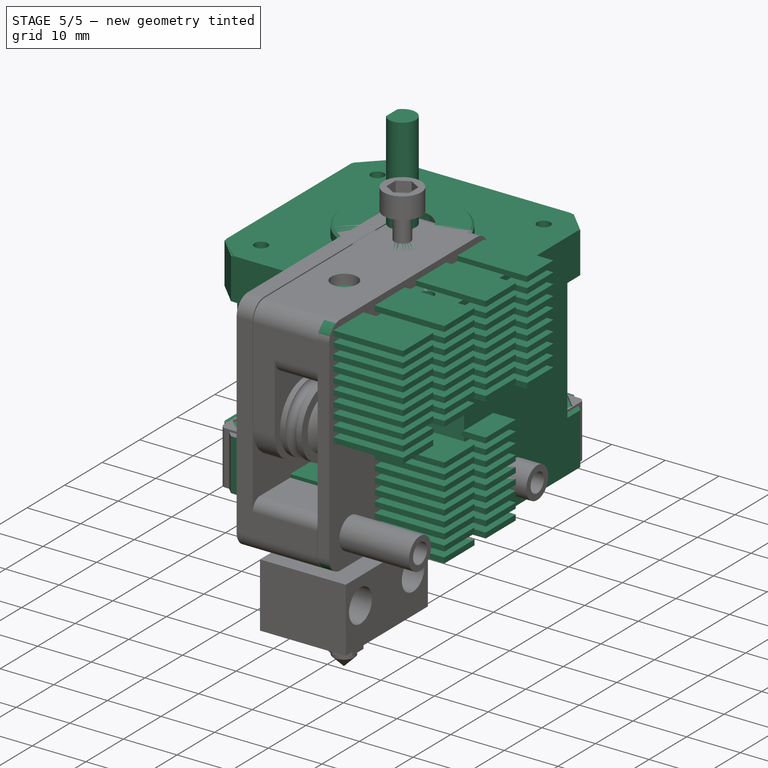
[diagram: stage 5 of 5 — iso view after this stage's code; geometry added in this stage tinted green]
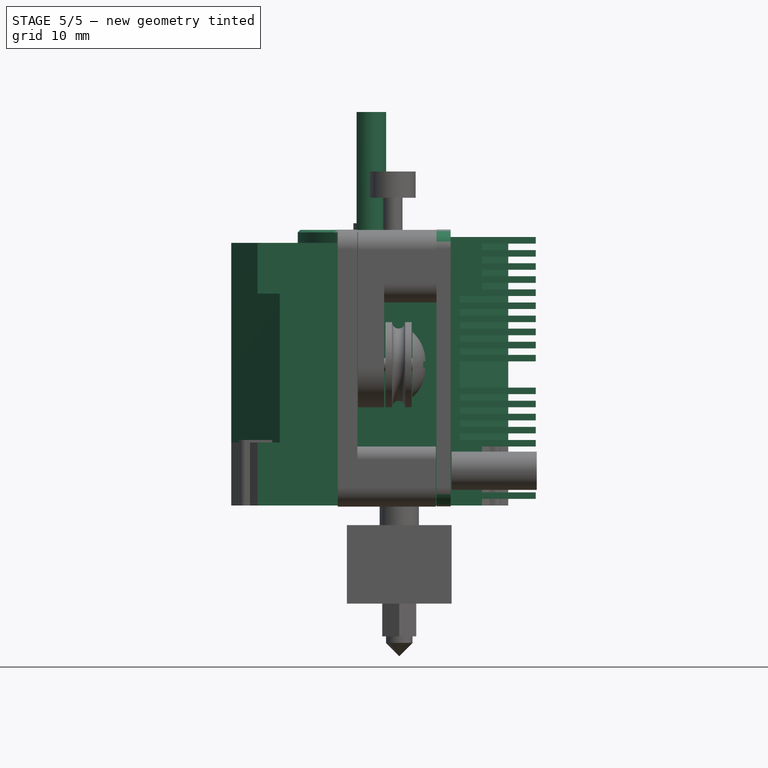
[diagram: stage 5 of 5 — front view after this stage's code; geometry added in this stage tinted green]
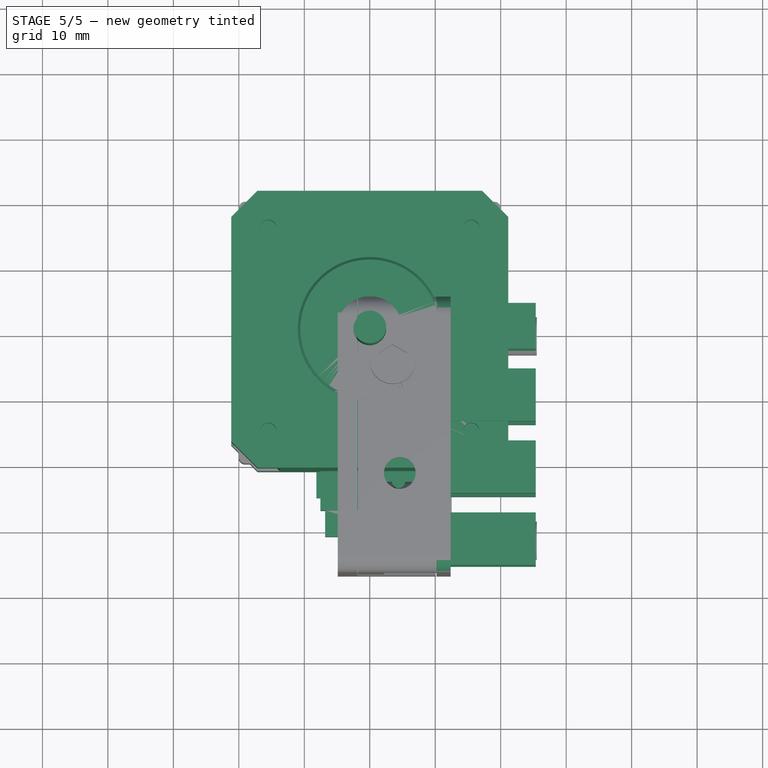
[diagram: stage 5 of 5 — top view after this stage's code; geometry added in this stage tinted green]
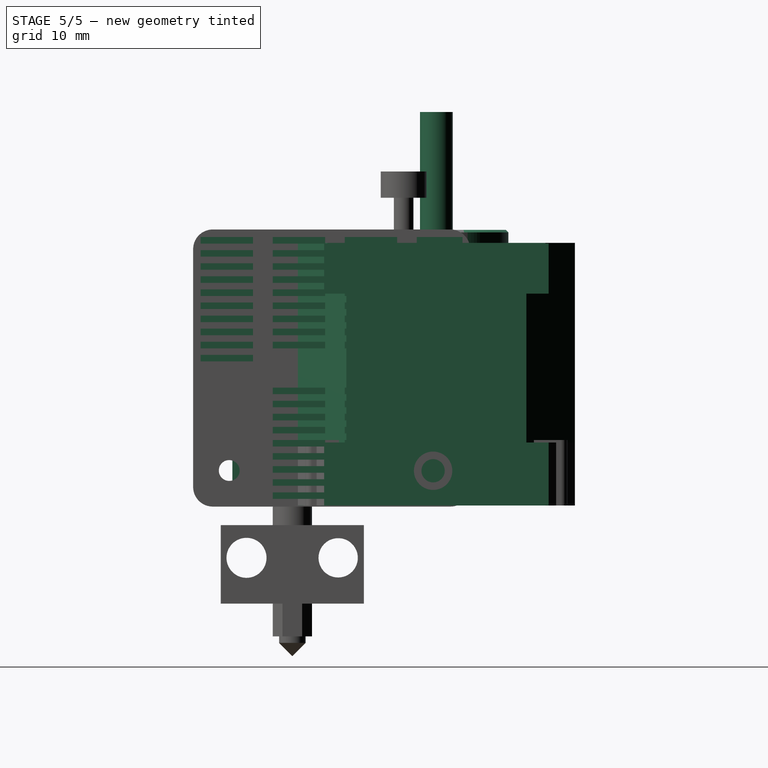
[diagram: stage 5 of 5 — right view after this stage's code; geometry added in this stage tinted green]
FEATURE [Part::Compound] Compound  label="extruder-motor"
  Placement = pos=(109.65,-100.5,-442) rot=(0,0,1;0rad)
FEATURE [Sketcher::SketchObject] Sketch001  label="bottom-part-sketch"
  sketch-geometry (8):
    g0: LineSegment StartX=-16.65 StartY=-21.15 StartZ=0 EndX=16.65 EndY=-21.15 EndZ=0
    g1: LineSegment StartX=21.15 StartY=-16.65 StartZ=0 EndX=21.15 EndY=16.65 EndZ=0
    g2: LineSegment StartX=16.65 StartY=21.15 StartZ=0 EndX=-16.65 EndY=21.15 EndZ=0
    g3: LineSegment StartX=-21.15 StartY=16.65 StartZ=0 EndX=-21.15 EndY=-16.65 EndZ=0
    g4: ArcOfCircle CenterX=0 CenterY=0 CenterZ=0 NormalX=0 NormalY=0 NormalZ=1 Radius=26.9174 StartAngle=2.2377 EndAngle=2.47468
    g5: ArcOfCircle CenterX=0 CenterY=0 CenterZ=0 NormalX=0 NormalY=0 NormalZ=1 Radius=26.9174 StartAngle=3.8085 EndAngle=4.04548
    g6: ArcOfCircle CenterX=0 CenterY=0 CenterZ=0 NormalX=0 NormalY=0 NormalZ=1 Radius=26.9174 StartAngle=5.3793 EndAngle=5.61628
    g7: ArcOfCircle CenterX=0 CenterY=0 CenterZ=0 NormalX=0 NormalY=0 NormalZ=1 Radius=26.9174 StartAngle=0.666908 EndAngle=0.903888
  constraints (29):
    c: Horizontal(g0)
    c: Horizontal(g2)
    c: Vertical(g1)
    c: Vertical(g3)
    c: PointOnObject(g0,g4)
    c: PointOnObject(g0,g4)
    c: PointOnObject(g1,g4)
    c: PointOnObject(g1,g4)
    c: Coincident(g4,g2)
    c: Coincident(g7,g2)
    c: Equal(g4,g5)
    c: Coincident(g4,g3)
    c: Coincident(g5,g3)
    c: Coincident(g4,g5)
    c: Equal(g5,g6)
    c: PointOnObject(g5,g0)
    c: PointOnObject(g6,g0)
    c: Coincident(g5,g6)
    c: Equal(g6,g7)
    c: PointOnObject(g6,g1)
    c: PointOnObject(g7,g1)
    c: Coincident(g6,g7)
    c: Equal(g3,g2)
    c: Equal(g2,g1)
    c: Equal(g1,g0)
    c: DistanceX(g3,g1) = 42.3
    c: DistanceX(g2) = -33.3
    c: DistanceY(g2) = 21.15
    c: DistanceX(g1) = 21.15
FEATURE [PartDesign::Pad] Pad001  label="bottom-slice"
  Length = 9.6
  Length2 = 100
  Sketch = -> Sketch001
  Type = 0
FEATURE [Sketcher::SketchObject] Sketch002  label="middle-part-sketch"
  ExternalGeometry = -> [Pad001]
  Placement = pos=(0,0,9.6) rot=(0,0,1;0rad)
  Support = -> Pad001 [Face10]
  sketch-geometry (9):
    g0: LineSegment StartX=-21 StartY=-13.75 StartZ=0 EndX=-21 EndY=13.75 EndZ=0
    g1: LineSegment StartX=-21 StartY=13.75 StartZ=0 EndX=-13.75 EndY=21 EndZ=0
    g2: LineSegment StartX=-13.75 StartY=21 StartZ=0 EndX=13.75 EndY=21 EndZ=0
    g3: LineSegment [constr] StartX=-21 StartY=13.75 StartZ=0 EndX=-9 EndY=13.75 EndZ=0
    g4: LineSegment StartX=13.75 StartY=21 StartZ=0 EndX=21 EndY=13.75 EndZ=0
    g5: LineSegment StartX=21 StartY=13.75 StartZ=0 EndX=21 EndY=-13.75 EndZ=0
    g6: LineSegment StartX=21 StartY=-13.75 StartZ=0 EndX=13.75 EndY=-21 EndZ=0
    g7: LineSegment StartX=13.75 StartY=-21 StartZ=0 EndX=-13.75 EndY=-21 EndZ=0
    g8: LineSegment StartX=-13.75 StartY=-21 StartZ=0 EndX=-21 EndY=-13.75 EndZ=0
  constraints (24):
    c: Coincident(g0,g1)
    c: Coincident(g1,g2)
    c: Horizontal(g2)
    c: Symmetric(g0,g0,g-1)
    c: Symmetric(g1,g2,g-2)
    c: Horizontal(g3)
    c: Coincident(g3,g0)
    c: DistanceX(g3) = 12
    c: Angle(g3,g1) = 0.785398
    c: DistanceY(g0) = 27.5
    c: Coincident(g4,g5)
    c: Vertical(g5)
    c: Coincident(g5,g6)
    c: Coincident(g6,g7)
    c: Horizontal(g7)
    c: Coincident(g7,g8)
    c: Coincident(g8,g0)
    c: Symmetric(g1,g7,g-1)
    c: Coincident(g4,g2)
    c: Symmetric(g4,g0,g-2)
    c: Symmetric(g0,g5,g-2)
    c: Symmetric(g6,g7,g-2)
    c: DistanceX(g-1,g0) = -21
    c: Equal(g0,g2)
FEATURE [PartDesign::Pad] Pad002  label="middle-slice"
  Length = 22.75
  Length2 = 100
  Sketch = -> Sketch002
  Type = 0
FEATURE [Sketcher::SketchObject] Sketch003  label="top-part-sketch"
  Placement = pos=(0,0,32.35) rot=(0,0,1;0rad)
  Support = -> Pad002 [Face19]
  sketch-geometry (8):
    g0: LineSegment StartX=-16.65 StartY=-21.15 StartZ=0 EndX=16.65 EndY=-21.15 EndZ=0
    g1: LineSegment StartX=21.15 StartY=-16.65 StartZ=0 EndX=21.15 EndY=16.65 EndZ=0
    g2: LineSegment StartX=16.65 StartY=21.15 StartZ=0 EndX=-16.65 EndY=21.15 EndZ=0
    g3: LineSegment StartX=-21.15 StartY=16.65 StartZ=0 EndX=-21.15 EndY=-16.65 EndZ=0
    g4: ArcOfCircle CenterX=0 CenterY=0 CenterZ=0 NormalX=0 NormalY=0 NormalZ=1 Radius=26.9174 StartAngle=2.2377 EndAngle=2.47468
    g5: ArcOfCircle CenterX=0 CenterY=0 CenterZ=0 NormalX=0 NormalY=0 NormalZ=1 Radius=26.9174 StartAngle=3.8085 EndAngle=4.04548
    g6: ArcOfCircle CenterX=0 CenterY=0 CenterZ=0 NormalX=0 NormalY=0 NormalZ=1 Radius=26.9174 StartAngle=5.3793 EndAngle=5.61628
    g7: ArcOfCircle CenterX=0 CenterY=0 CenterZ=0 NormalX=0 NormalY=0 NormalZ=1 Radius=26.9174 StartAngle=0.666908 EndAngle=0.903888
  constraints (29):
    c: Horizontal(g0)
    c: Horizontal(g2)
    c: Vertical(g1)
    c: Vertical(g3)
    c: PointOnObject(g0,g4)
    c: PointOnObject(g0,g4)
    c: PointOnObject(g1,g4)
    c: PointOnObject(g1,g4)
    c: Coincident(g4,g2)
    c: Coincident(g7,g2)
    c: Equal(g4,g5)
    c: Coincident(g4,g3)
    c: Coincident(g5,g3)
    c: Coincident(g4,g5)
    c: Equal(g5,g6)
    c: PointOnObject(g5,g0)
    c: PointOnObject(g6,g0)
    c: Coincident(g5,g6)
    c: Equal(g6,g7)
    c: PointOnObject(g6,g1)
    c: PointOnObject(g7,g1)
    c: Coincident(g6,g7)
    c: Equal(g3,g2)
    c: Equal(g2,g1)
    c: Equal(g1,g0)
    c: DistanceX(g3,g1) = 42.3
    c: DistanceX(g2) = -33.3
    c: DistanceY(g2) = 21.15
    c: DistanceX(g1) = 21.15
FEATURE [PartDesign::Pad] Pad003  label="top-slice"
  Length = 7.75
  Length2 = 100
  Sketch = -> Sketch003
  Type = 0
FEATURE [Sketcher::SketchObject] Sketch004  label="top-drills-sketch"
  Placement = pos=(0,0,40.1) rot=(0,0,1;0rad)
  Support = -> Pad003 [Face28]
  sketch-geometry (6):
    g0: LineSegment [constr] StartX=-15.5 StartY=15.5 StartZ=0 EndX=15.5 EndY=15.5 EndZ=0
    g1: LineSegment [constr] StartX=-15.5 StartY=15.5 StartZ=0 EndX=-15.5 EndY=-15.5 EndZ=0
    g2: Circle CenterX=-15.5 CenterY=15.5 CenterZ=0 NormalX=0 NormalY=0 NormalZ=1 Radius=1.225
    g3: Circle CenterX=15.5 CenterY=15.5 CenterZ=0 NormalX=0 NormalY=0 NormalZ=1 Radius=1.225
    g4: Circle CenterX=15.5 CenterY=-15.5 CenterZ=0 NormalX=0 NormalY=0 NormalZ=1 Radius=1.225
    g5: Circle CenterX=-15.5 CenterY=-15.5 CenterZ=0 NormalX=0 NormalY=0 NormalZ=1 Radius=1.225
  constraints (15):
    c: Horizontal(g0)
    c: Symmetric(g0,g0,g-2)
    c: Vertical(g1)
    c: Symmetric(g1,g1,g-1)
    c: Equal(g0,g1)
    c: DistanceX(g0) = 31
    c: Coincident(g1,g0)
    c: Radius(g2) = 1.225
    c: Coincident(g2,g0)
    c: Equal(g5,g4)
    c: Equal(g4,g3)
    c: Equal(g3,g2)
    c: Coincident(g3,g0)
    c: Coincident(g5,g1)
    c: Symmetric(g4,g1,g-2)
FEATURE [PartDesign::Pocket] Pocket  label="top-drills"
  Length = 4.5
  Sketch = -> Sketch004
  Type = 0
FEATURE [Sketcher::SketchObject] Sketch005  label="shaft-base-sketch"
  Placement = pos=(0,0,40.1) rot=(0,0,1;0rad)
  Support = -> Pocket [Face28]
  sketch-geometry (2):
    g0: Circle CenterX=0 CenterY=0 CenterZ=0 NormalX=0 NormalY=0 NormalZ=1 Radius=11
    g1: Circle CenterX=0 CenterY=0 CenterZ=0 NormalX=0 NormalY=0 NormalZ=1 Radius=5
  constraints (4):
    c: Coincident(g0,g-1)
    c: Radius(g0) = 11
    c: Coincident(g1,g-1)
    c: Radius(g1) = 5
FEATURE [PartDesign::Pad] Pad004  label="shaft-base"
  Length = 2
  Length2 = 100
  Sketch = -> Sketch005
  Type = 0
FEATURE [Sketcher::SketchObject] Sketch006  label="shaft-1-sketch"
  Placement = pos=(0,0,40.1) rot=(0,0,1;0rad)
  Support = -> Pad004 [Face40]
  sketch-geometry (1):
    g0: Circle CenterX=0 CenterY=0 CenterZ=0 NormalX=0 NormalY=0 NormalZ=1 Radius=2.5
  constraints (2):
    c: Coincident(g0,g-1)
    c: Radius(g0) = 2.5
FEATURE [PartDesign::Pad] Pad005  label="shaft-1"
  Length = 20
  Length2 = 100
  Sketch = -> Sketch006
  Type = 0
FEATURE [Sketcher::SketchObject] Sketch007  label="shaft-2-sketch"
  ExternalGeometry = -> [Pad005]
  Placement = pos=(0,0,60.1) rot=(0,0,1;0rad)
  Support = -> Pad005 [Face42]
  sketch-geometry (4):
    g0: LineSegment StartX=-2 StartY=1.5 StartZ=0 EndX=-2 EndY=-1.5 EndZ=0
    g1: LineSegment StartX=-2 StartY=1.5 StartZ=0 EndX=-2.5 EndY=1.5 EndZ=0
    g2: LineSegment StartX=-2.5 StartY=1.5 StartZ=0 EndX=-2.5 EndY=-1.5 EndZ=0
    g3: LineSegment StartX=-2.5 StartY=-1.5 StartZ=0 EndX=-2 EndY=-1.5 EndZ=0
  constraints (12):
    c: Vertical(g0)
    c: Symmetric(g0,g0,g-1)
    c: PointOnObject(g0,g-3)
    c: Coincident(g1,g2)
    c: Coincident(g2,g3)
    c: Horizontal(g3)
    c: Horizontal(g1)
    c: Coincident(g1,g0)
    c: Coincident(g0,g3)
    c: Vertical(g2)
    c: Tangent(g2,g-3)
    c: DistanceX(g1) = -0.5
FEATURE [PartDesign::Pocket] Pocket001  label="shaft-2"
  Length = 17
  Sketch = -> Sketch007
  Type = 0
FEATURE [Sketcher::SketchObject] Sketch008  label="bottom-drills-sketch"
  Placement = pos=(0,0,0) rot=(1,0,0;3.14159rad)
  Support = -> Pocket001 [Face4]
  sketch-geometry (7):
    g0: LineSegment [constr] StartX=-15.5 StartY=15.5 StartZ=0 EndX=15.5 EndY=15.5 EndZ=0
    g1: LineSegment [constr] StartX=-15.5 StartY=15.5 StartZ=0 EndX=-15.5 EndY=-15.5 EndZ=0
    g2: Circle CenterX=-15.5 CenterY=15.5 CenterZ=0 NormalX=0 NormalY=0 NormalZ=1 Radius=1.5
    g3: Circle CenterX=15.5 CenterY=15.5 CenterZ=0 NormalX=0 NormalY=0 NormalZ=1 Radius=1.5
    g4: Circle CenterX=15.5 CenterY=-15.5 CenterZ=0 NormalX=0 NormalY=0 NormalZ=1 Radius=1.5
    g5: Circle CenterX=-15.5 CenterY=-15.5 CenterZ=0 NormalX=0 NormalY=0 NormalZ=1 Radius=1.5
    g6: Circle CenterX=0 CenterY=0 CenterZ=0 NormalX=0 NormalY=0 NormalZ=1 Radius=4.5
  constraints (17):
    c: Horizontal(g0)
    c: Vertical(g1)
    c: Coincident(g1,g0)
    c: Symmetric(g0,g0,g-2)
    c: Symmetric(g0,g1,g-1)
    c: Equal(g1,g0)
    c: DistanceX(g0) = 31
    c: Coincident(g2,g0)
    c: Radius(g2) = 1.5
    c: Coincident(g5,g1)
    c: Coincident(g0,g3)
    c: Equal(g3,g2)
    c: Equal(g2,g5)
    c: Equal(g5,g4)
    c: Symmetric(g4,g1,g-2)
    c: Coincident(g6,g-1)
    c: Radius(g6) = 4.5
FEATURE [PartDesign::Pocket] Pocket002  label="bottom-drills"
  Length = 3
  Sketch = -> Sketch008
  Type = 0
FEATURE [Part::Chamfer] Chamfer  label="motor-no-connector"
  Base = -> Pocket002
  Edges = 1 edges r=0.4: [Edge102]
FEATURE [Sketcher::SketchObject] Sketch021
  Placement = pos=(6.4,-29.5,21.5) rot=(0.57735,0.57735,0.57735;2.0944rad)
  Support = -> Revolution [Face1]
  sketch-geometry (1):
    g0: Circle CenterX=0 CenterY=0 CenterZ=0 NormalX=0 NormalY=0 NormalZ=1 Radius=1.6
  constraints (2):
    c: Coincident(g0,g-1)
    c: Radius(g0) = 1.6
FEATURE [PartDesign::Pocket] Pocket007
  Length = 5
  Placement = pos=(4.4,-29.5,21.5) rot=(0,0,1;0rad)
  Sketch = -> Sketch021
  Type = 1
FEATURE [PartDesign::Fillet] Fillet005
  Base = -> Pad012 [Edge8,Edge5,Edge2,Edge1]
  Placement = pos=(10.2,-16,21) rot=(0.57735,0.57735,0.57735;2.0944rad)
  Radius = 3
FEATURE [Sketcher::SketchObject] Sketch033
  Placement = pos=(12.35,-16,21) rot=(0.57735,0.57735,0.57735;2.0944rad)
  Support = -> Fillet005 [Face5]
  sketch-geometry (224):
    g0: LineSegment StartX=-20 StartY=20 StartZ=0 EndX=-12 EndY=20 EndZ=0
    g1: LineSegment StartX=-12 StartY=20 StartZ=0 EndX=-12 EndY=19 EndZ=0
    g2: LineSegment StartX=-12 StartY=19 StartZ=0 EndX=-20 EndY=19 EndZ=0
    g3: LineSegment StartX=-20 StartY=19 StartZ=0 EndX=-20 EndY=20 EndZ=0
    g4: LineSegment StartX=-9 StartY=20 StartZ=0 EndX=-1 EndY=20 EndZ=0
    g5: LineSegment StartX=-1 StartY=20 StartZ=0 EndX=-1 EndY=19 EndZ=0
    g6: LineSegment StartX=-1 StartY=19 StartZ=0 EndX=-9 EndY=19 EndZ=0
    g7: LineSegment StartX=-9 StartY=19 StartZ=0 EndX=-9 EndY=20 EndZ=0
    g8: LineSegment StartX=2 StartY=20 StartZ=0 EndX=10 EndY=20 EndZ=0
    g9: LineSegment StartX=10 StartY=20 StartZ=0 EndX=10 EndY=19 EndZ=0
    g10: LineSegment StartX=10 StartY=19 StartZ=0 EndX=2 EndY=19 EndZ=0
    g11: LineSegment StartX=2 StartY=19 StartZ=0 EndX=2 EndY=20 EndZ=0
    g12: LineSegment StartX=13 StartY=20 StartZ=0 EndX=20 EndY=20 EndZ=0
    g13: LineSegment StartX=20 StartY=20 StartZ=0 EndX=20 EndY=19 EndZ=0
    g14: LineSegment StartX=20 StartY=19 StartZ=0 EndX=13 EndY=19 EndZ=0
    g15: LineSegment StartX=13 StartY=19 StartZ=0 EndX=13 EndY=20 EndZ=0
    g16: LineSegment StartX=-9 StartY=18 StartZ=0 EndX=-1 EndY=18 EndZ=0
    g17: LineSegment StartX=-1 StartY=18 StartZ=0 EndX=-1 EndY=17 EndZ=0
    g18: LineSegment StartX=-1 StartY=17 StartZ=0 EndX=-9 EndY=17 EndZ=0
    g19: LineSegment StartX=-9 StartY=17 StartZ=0 EndX=-9 EndY=18 EndZ=0
    g20: LineSegment StartX=-9 StartY=16 StartZ=0 EndX=-1 EndY=16 EndZ=0
    g21: LineSegment StartX=-1 StartY=16 StartZ=0 EndX=-1 EndY=15 EndZ=0
    g22: LineSegment StartX=-1 StartY=15 StartZ=0 EndX=-9 EndY=15 EndZ=0
    g23: LineSegment StartX=-9 StartY=15 StartZ=0 EndX=-9 EndY=16 EndZ=0
    g24: LineSegment StartX=-9 StartY=14 StartZ=0 EndX=-1 EndY=14 EndZ=0
    g25: LineSegment StartX=-1 StartY=14 StartZ=0 EndX=-1 EndY=13 EndZ=0
    g26: LineSegment StartX=-1 StartY=13 StartZ=0 EndX=-9 EndY=13 EndZ=0
    g27: LineSegment StartX=-9 StartY=13 StartZ=0 EndX=-9 EndY=14 EndZ=0
    g28: LineSegment StartX=-9 StartY=12 StartZ=0 EndX=-1 EndY=12 EndZ=0
    g29: LineSegment StartX=-1 StartY=12 StartZ=0 EndX=-1 EndY=11 EndZ=0
    g30: LineSegment StartX=-1 StartY=11 StartZ=0 EndX=-9 EndY=11 EndZ=0
    g31: LineSegment StartX=-9 StartY=11 StartZ=0 EndX=-9 EndY=12 EndZ=0
    g32: LineSegment StartX=-9 StartY=10 StartZ=0 EndX=-1 EndY=10 EndZ=0
    g33: LineSegment StartX=-1 StartY=10 StartZ=0 EndX=-1 EndY=9 EndZ=0
    g34: LineSegment StartX=-1 StartY=9 StartZ=0 EndX=-9 EndY=9 EndZ=0
    g35: LineSegment StartX=-9 StartY=9 StartZ=0 EndX=-9 EndY=10 EndZ=0
    g36: LineSegment StartX=-9 StartY=7 StartZ=0 EndX=-1 EndY=7 EndZ=0
    g37: LineSegment StartX=-1 StartY=7 StartZ=0 EndX=-1 EndY=8 EndZ=0
    g38: LineSegment StartX=-1 StartY=8 StartZ=0 EndX=-9 EndY=8 EndZ=0
    g39: LineSegment StartX=-9 StartY=8 StartZ=0 EndX=-9 EndY=7 EndZ=0
    g40: LineSegment StartX=-9 StartY=5 StartZ=0 EndX=-1 EndY=5 EndZ=0
    g41: LineSegment StartX=-1 StartY=5 StartZ=0 EndX=-1 EndY=6 EndZ=0
    g42: LineSegment StartX=-1 StartY=6 StartZ=0 EndX=-9 EndY=6 EndZ=0
    g43: LineSegment StartX=-9 StartY=6 StartZ=0 EndX=-9 EndY=5 EndZ=0
    g44: LineSegment StartX=-9 StartY=3 StartZ=0 EndX=-1 EndY=3 EndZ=0
    g45: LineSegment StartX=-1 StartY=3 StartZ=0 EndX=-1 EndY=4 EndZ=0
    g46: LineSegment StartX=-1 StartY=4 StartZ=0 EndX=-9 EndY=4 EndZ=0
    g47: LineSegment StartX=-9 StartY=4 StartZ=0 EndX=-9 EndY=3 EndZ=0
    g48: LineSegment StartX=2 StartY=18 StartZ=0 EndX=10 EndY=18 EndZ=0
    g49: LineSegment StartX=10 StartY=18 StartZ=0 EndX=10 EndY=17 EndZ=0
    g50: LineSegment StartX=10 StartY=17 StartZ=0 EndX=2 EndY=17 EndZ=0
    g51: LineSegment StartX=2 StartY=17 StartZ=0 EndX=2 EndY=18 EndZ=0
    g52: LineSegment StartX=2 StartY=16 StartZ=0 EndX=10 EndY=16 EndZ=0
    g53: LineSegment StartX=10 StartY=16 StartZ=0 EndX=10 EndY=15 EndZ=0
    g54: LineSegment StartX=10 StartY=15 StartZ=0 EndX=2 EndY=15 EndZ=0
    g55: LineSegment StartX=2 StartY=15 StartZ=0 EndX=2 EndY=16 EndZ=0
    g56: LineSegment StartX=2 StartY=14 StartZ=0 EndX=10 EndY=14 EndZ=0
    g57: LineSegment StartX=10 StartY=14 StartZ=0 EndX=10 EndY=13 EndZ=0
    g58: LineSegment StartX=10 StartY=13 StartZ=0 EndX=2 EndY=13 EndZ=0
    g59: LineSegment StartX=2 StartY=13 StartZ=0 EndX=2 EndY=14 EndZ=0
    g60: LineSegment StartX=2 StartY=12 StartZ=0 EndX=10 EndY=12 EndZ=0
    g61: LineSegment StartX=10 StartY=12 StartZ=0 EndX=10 EndY=11 EndZ=0
    g62: LineSegment StartX=10 StartY=11 StartZ=0 EndX=2 EndY=11 EndZ=0
    g63: LineSegment StartX=2 StartY=11 StartZ=0 EndX=2 EndY=12 EndZ=0
    g64: LineSegment StartX=2 StartY=10 StartZ=0 EndX=10 EndY=10 EndZ=0
    g65: LineSegment StartX=10 StartY=10 StartZ=0 EndX=10 EndY=9 EndZ=0
    g66: LineSegment StartX=10 StartY=9 StartZ=0 EndX=2 EndY=9 EndZ=0
    g67: LineSegment StartX=2 StartY=9 StartZ=0 EndX=2 EndY=10 EndZ=0
    g68: LineSegment StartX=2 StartY=8 StartZ=0 EndX=10 EndY=8 EndZ=0
    g69: LineSegment StartX=10 StartY=8 StartZ=0 EndX=10 EndY=7 EndZ=0
    g70: LineSegment StartX=10 StartY=7 StartZ=0 EndX=2 EndY=7 EndZ=0
    g71: LineSegment StartX=2 StartY=7 StartZ=0 EndX=2 EndY=8 EndZ=0
    g72: LineSegment StartX=2 StartY=6 StartZ=0 EndX=10 EndY=6 EndZ=0
    g73: LineSegment StartX=10 StartY=6 StartZ=0 EndX=10 EndY=5 EndZ=0
    g74: LineSegment StartX=10 StartY=5 StartZ=0 EndX=2 EndY=5 EndZ=0
    g75: LineSegment StartX=2 StartY=5 StartZ=0 EndX=2 EndY=6 EndZ=0
    g76: LineSegment StartX=2 StartY=4 StartZ=0 EndX=10 EndY=4 EndZ=0
    g77: LineSegment StartX=10 StartY=4 StartZ=0 EndX=10 EndY=3 EndZ=0
    g78: LineSegment StartX=10 StartY=3 StartZ=0 EndX=2 EndY=3 EndZ=0
    g79: LineSegment StartX=2 StartY=3 StartZ=0 EndX=2 EndY=4 EndZ=0
    g80: LineSegment StartX=-20 StartY=18 StartZ=0 EndX=-12 EndY=18 EndZ=0
    g81: LineSegment StartX=-12 StartY=18 StartZ=0 EndX=-12 EndY=17 EndZ=0
    g82: LineSegment StartX=-12 StartY=17 StartZ=0 EndX=-20 EndY=17 EndZ=0
    g83: LineSegment StartX=-20 StartY=17 StartZ=0 EndX=-20 EndY=18 EndZ=0
    g84: LineSegment StartX=-20 StartY=16 StartZ=0 EndX=-12 EndY=16 EndZ=0
    g85: LineSegment StartX=-12 StartY=16 StartZ=0 EndX=-12 EndY=15 EndZ=0
    g86: LineSegment StartX=-12 StartY=15 StartZ=0 EndX=-20 EndY=15 EndZ=0
    g87: LineSegment StartX=-20 StartY=15 StartZ=0 EndX=-20 EndY=16 EndZ=0
    g88: LineSegment StartX=-20 StartY=14 StartZ=0 EndX=-12 EndY=14 EndZ=0
    g89: LineSegment StartX=-12 StartY=14 StartZ=0 EndX=-12 EndY=13 EndZ=0
    g90: LineSegment StartX=-12 StartY=13 StartZ=0 EndX=-20 EndY=13 EndZ=0
    g91: LineSegment StartX=-20 StartY=13 StartZ=0 EndX=-20 EndY=14 EndZ=0
    g92: LineSegment StartX=-20 StartY=12 StartZ=0 EndX=-12 EndY=12 EndZ=0
    g93: LineSegment StartX=-12 StartY=12 StartZ=0 EndX=-12 EndY=11 EndZ=0
    g94: LineSegment StartX=-12 StartY=11 StartZ=0 EndX=-20 EndY=11 EndZ=0
    g95: LineSegment StartX=-20 StartY=11 StartZ=0 EndX=-20 EndY=12 EndZ=0
    g96: LineSegment StartX=-20 StartY=10 StartZ=0 EndX=-12 EndY=10 EndZ=0
    g97: LineSegment StartX=-12 StartY=10 StartZ=0 EndX=-12 EndY=9 EndZ=0
    g98: LineSegment StartX=-12 StartY=9 StartZ=0 EndX=-20 EndY=9 EndZ=0
    g99: LineSegment StartX=-20 StartY=9 StartZ=0 EndX=-20 EndY=10 EndZ=0
    g100: LineSegment StartX=-20 StartY=8 StartZ=0 EndX=-12 EndY=8 EndZ=0
    g101: LineSegment StartX=-12 StartY=8 StartZ=0 EndX=-12 EndY=7 EndZ=0
    g102: LineSegment StartX=-12 StartY=7 StartZ=0 EndX=-20 EndY=7 EndZ=0
    g103: LineSegment StartX=-20 StartY=7 StartZ=0 EndX=-20 EndY=8 EndZ=0
    g104: LineSegment StartX=-20 StartY=6 StartZ=0 EndX=-12 EndY=6 EndZ=0
    g105: LineSegment StartX=-12 StartY=6 StartZ=0 EndX=-12 EndY=5 EndZ=0
    g106: LineSegment StartX=-12 StartY=5 StartZ=0 EndX=-20 EndY=5 EndZ=0
    g107: LineSegment StartX=-20 StartY=5 StartZ=0 EndX=-20 EndY=6 EndZ=0
    g108: LineSegment StartX=-20 StartY=4 StartZ=0 EndX=-12 EndY=4 EndZ=0
    g109: LineSegment StartX=-12 StartY=4 StartZ=0 EndX=-12 EndY=3 EndZ=0
    g110: LineSegment StartX=-12 StartY=3 StartZ=0 EndX=-20 EndY=3 EndZ=0
    g111: LineSegment StartX=-20 StartY=3 StartZ=0 EndX=-20 EndY=4 EndZ=0
    g112: LineSegment StartX=-20 StartY=2 StartZ=0 EndX=-12 EndY=2 EndZ=0
    g113: LineSegment StartX=-12 StartY=2 StartZ=0 EndX=-12 EndY=1 EndZ=0
    g114: LineSegment StartX=-12 StartY=1 StartZ=0 EndX=-20 EndY=1 EndZ=0
    g115: LineSegment StartX=-20 StartY=1 StartZ=0 EndX=-20 EndY=2 EndZ=0
    g116: LineSegment StartX=13 StartY=18 StartZ=0 EndX=20 EndY=18 EndZ=0
    g117: LineSegment StartX=20 StartY=18 StartZ=0 EndX=20 EndY=17 EndZ=0
    g118: LineSegment StartX=20 StartY=17 StartZ=0 EndX=13 EndY=17 EndZ=0
    g119: LineSegment StartX=13 StartY=17 StartZ=0 EndX=13 EndY=18 EndZ=0
    g120: LineSegment StartX=13 StartY=16 StartZ=0 EndX=20 EndY=16 EndZ=0
    g121: LineSegment StartX=20 StartY=16 StartZ=0 EndX=20 EndY=15 EndZ=0
    g122: LineSegment StartX=20 StartY=15 StartZ=0 EndX=13 EndY=15 EndZ=0
    g123: LineSegment StartX=13 StartY=15 StartZ=0 EndX=13 EndY=16 EndZ=0
    g124: LineSegment StartX=13 StartY=14 StartZ=0 EndX=20 EndY=14 EndZ=0
    g125: LineSegment StartX=20 StartY=14 StartZ=0 EndX=20 EndY=13 EndZ=0
    g126: LineSegment StartX=20 StartY=13 StartZ=0 EndX=13 EndY=13 EndZ=0
    g127: LineSegment StartX=13 StartY=13 StartZ=0 EndX=13 EndY=14 EndZ=0
    g128: LineSegment StartX=13 StartY=12 StartZ=0 EndX=20 EndY=12 EndZ=0
    g129: LineSegment StartX=20 StartY=12 StartZ=0 EndX=20 EndY=11 EndZ=0
    g130: LineSegment StartX=20 StartY=11 StartZ=0 EndX=13 EndY=11 EndZ=0
    g131: LineSegment StartX=13 StartY=11 StartZ=0 EndX=13 EndY=12 EndZ=0
    g132: LineSegment StartX=13 StartY=10 StartZ=0 EndX=20 EndY=10 EndZ=0
    g133: LineSegment StartX=20 StartY=10 StartZ=0 EndX=20 EndY=9 EndZ=0
    g134: LineSegment StartX=20 StartY=9 StartZ=0 EndX=13 EndY=9 EndZ=0
    g135: LineSegment StartX=13 StartY=9 StartZ=0 EndX=13 EndY=10 EndZ=0
    g136: LineSegment StartX=13 StartY=8 StartZ=0 EndX=20 EndY=8 EndZ=0
    g137: LineSegment StartX=20 StartY=8 StartZ=0 EndX=20 EndY=7 EndZ=0
    g138: LineSegment StartX=20 StartY=7 StartZ=0 EndX=13 EndY=7 EndZ=0
    g139: LineSegment StartX=13 StartY=7 StartZ=0 EndX=13 EndY=8 EndZ=0
    g140: LineSegment StartX=13 StartY=6 StartZ=0 EndX=20 EndY=6 EndZ=0
    g141: LineSegment StartX=20 StartY=6 StartZ=0 EndX=20 EndY=5 EndZ=0
    g142: LineSegment StartX=20 StartY=5 StartZ=0 EndX=13 EndY=5 EndZ=0
    g143: LineSegment StartX=13 StartY=5 StartZ=0 EndX=13 EndY=6 EndZ=0
    g144: LineSegment StartX=13 StartY=4 StartZ=0 EndX=20 EndY=4 EndZ=0
    g145: LineSegment StartX=20 StartY=4 StartZ=0 EndX=20 EndY=3 EndZ=0
    g146: LineSegment StartX=20 StartY=3 StartZ=0 EndX=13 EndY=3 EndZ=0
    g147: LineSegment StartX=13 StartY=3 StartZ=0 EndX=13 EndY=4 EndZ=0
    g148: LineSegment StartX=13 StartY=2 StartZ=0 EndX=20 EndY=2 EndZ=0
    g149: LineSegment StartX=20 StartY=2 StartZ=0 EndX=20 EndY=1 EndZ=0
    g150: LineSegment StartX=20 StartY=1 StartZ=0 EndX=13 EndY=1 EndZ=0
    g151: LineSegment StartX=13 StartY=1 StartZ=0 EndX=13 EndY=2 EndZ=0
    g152: LineSegment StartX=-1 StartY=-3 StartZ=0 EndX=-9 EndY=-3 EndZ=0
    g153: LineSegment StartX=-9 StartY=-3 StartZ=0 EndX=-9 EndY=-4 EndZ=0
    g154: LineSegment StartX=-9 StartY=-4 StartZ=0 EndX=-1 EndY=-4 EndZ=0
    g155: LineSegment StartX=-1 StartY=-4 StartZ=0 EndX=-1 EndY=-3 EndZ=0
    g156: LineSegment StartX=-9 StartY=-5 StartZ=0 EndX=-1 EndY=-5 EndZ=0
    g157: LineSegment StartX=-1 StartY=-5 StartZ=0 EndX=-1 EndY=-6 EndZ=0
    g158: LineSegment StartX=-1 StartY=-6 StartZ=0 EndX=-9 EndY=-6 EndZ=0
    g159: LineSegment StartX=-9 StartY=-6 StartZ=0 EndX=-9 EndY=-5 EndZ=0
    g160: LineSegment StartX=-9 StartY=-7 StartZ=0 EndX=-1 EndY=-7 EndZ=0
    g161: LineSegment StartX=-1 StartY=-7 StartZ=0 EndX=-1 EndY=-8 EndZ=0
    g162: LineSegment StartX=-1 StartY=-8 StartZ=0 EndX=-9 EndY=-8 EndZ=0
    g163: LineSegment StartX=-9 StartY=-8 StartZ=0 EndX=-9 EndY=-7 EndZ=0
    g164: LineSegment StartX=-9 StartY=-9 StartZ=0 EndX=-1 EndY=-9 EndZ=0
    g165: LineSegment StartX=-1 StartY=-9 StartZ=0 EndX=-1 EndY=-10 EndZ=0
    g166: LineSegment StartX=-1 StartY=-10 StartZ=0 EndX=-9 EndY=-10 EndZ=0
    g167: LineSegment StartX=-9 StartY=-10 StartZ=0 EndX=-9 EndY=-9 EndZ=0
    g168: LineSegment StartX=-1 StartY=-11 StartZ=0 EndX=-9 EndY=-11 EndZ=0
    g169: LineSegment StartX=-9 StartY=-11 StartZ=0 EndX=-9 EndY=-12 EndZ=0
    g170: LineSegment StartX=-9 StartY=-12 StartZ=0 EndX=-1 EndY=-12 EndZ=0
    g171: LineSegment StartX=-1 StartY=-12 StartZ=0 EndX=-1 EndY=-11 EndZ=0
    g172: LineSegment StartX=-9 StartY=-13 StartZ=0 EndX=-1 EndY=-13 EndZ=0
    g173: LineSegment StartX=-1 StartY=-13 StartZ=0 EndX=-1 EndY=-14 EndZ=0
    g174: LineSegment StartX=-1 StartY=-14 StartZ=0 EndX=-9 EndY=-14 EndZ=0
    g175: LineSegment StartX=-9 StartY=-14 StartZ=0 EndX=-9 EndY=-13 EndZ=0
    g176: LineSegment StartX=-1 StartY=-15 StartZ=0 EndX=-9 EndY=-15 EndZ=0
    g177: LineSegment StartX=-9 StartY=-15 StartZ=0 EndX=-9 EndY=-16 EndZ=0
    g178: LineSegment StartX=-9 StartY=-16 StartZ=0 EndX=-1 EndY=-16 EndZ=0
    g179: LineSegment StartX=-1 StartY=-16 StartZ=0 EndX=-1 EndY=-15 EndZ=0
    g180: LineSegment StartX=-9 StartY=-17 StartZ=0 EndX=-1 EndY=-17 EndZ=0
    g181: LineSegment StartX=-1 StartY=-17 StartZ=0 EndX=-1 EndY=-18 EndZ=0
    g182: LineSegment StartX=-1 StartY=-18 StartZ=0 EndX=-9 EndY=-18 EndZ=0
    g183: LineSegment StartX=-9 StartY=-18 StartZ=0 EndX=-9 EndY=-17 EndZ=0
    g184: LineSegment StartX=-1 StartY=-19 StartZ=0 EndX=-9 EndY=-19 EndZ=0
    g185: LineSegment StartX=-9 StartY=-19 StartZ=0 EndX=-9 EndY=-20 EndZ=0
    g186: LineSegment StartX=-9 StartY=-20 StartZ=0 EndX=-1 EndY=-20 EndZ=0
    g187: LineSegment StartX=-1 StartY=-20 StartZ=0 EndX=-1 EndY=-19 EndZ=0
    g188: LineSegment StartX=2 StartY=-3 StartZ=0 EndX=10 EndY=-3 EndZ=0
    g189: LineSegment StartX=10 StartY=-3 StartZ=0 EndX=10 EndY=-4 EndZ=0
    g190: LineSegment StartX=10 StartY=-4 StartZ=0 EndX=2 EndY=-4 EndZ=0
    g191: LineSegment StartX=2 StartY=-4 StartZ=0 EndX=2 EndY=-3 EndZ=0
    g192: LineSegment StartX=2 StartY=-5 StartZ=0 EndX=10 EndY=-5 EndZ=0
    g193: LineSegment StartX=10 StartY=-5 StartZ=0 EndX=10 EndY=-6 EndZ=0
    g194: LineSegment StartX=10 StartY=-6 StartZ=0 EndX=2 EndY=-6 EndZ=0
    g195: LineSegment StartX=2 StartY=-6 StartZ=0 EndX=2 EndY=-5 EndZ=0
    g196: LineSegment StartX=2 StartY=-7 StartZ=0 EndX=10 EndY=-7 EndZ=0
    g197: LineSegment StartX=10 StartY=-7 StartZ=0 EndX=10 EndY=-8 EndZ=0
    g198: LineSegment StartX=10 StartY=-8 StartZ=0 EndX=2 EndY=-8 EndZ=0
    g199: LineSegment StartX=2 StartY=-8 StartZ=0 EndX=2 EndY=-7 EndZ=0
    g200: LineSegment StartX=2 StartY=-9 StartZ=0 EndX=10 EndY=-9 EndZ=0
    g201: LineSegment StartX=10 StartY=-9 StartZ=0 EndX=10 EndY=-10 EndZ=0
    g202: LineSegment StartX=10 StartY=-10 StartZ=0 EndX=2 EndY=-10 EndZ=0
    g203: LineSegment StartX=2 StartY=-10 StartZ=0 EndX=2 EndY=-9 EndZ=0
    g204: LineSegment StartX=2 StartY=-11 StartZ=0 EndX=10 EndY=-11 EndZ=0
    g205: LineSegment StartX=10 StartY=-11 StartZ=0 EndX=10 EndY=-12 EndZ=0
    g206: LineSegment StartX=10 StartY=-12 StartZ=0 EndX=2 EndY=-12 EndZ=0
    g207: LineSegment StartX=2 StartY=-12 StartZ=0 EndX=2 EndY=-11 EndZ=0
    g208: LineSegment StartX=2 StartY=-13 StartZ=0 EndX=10 EndY=-13 EndZ=0
    g209: LineSegment StartX=10 StartY=-13 StartZ=0 EndX=10 EndY=-14 EndZ=0
    g210: LineSegment StartX=10 StartY=-14 StartZ=0 EndX=2 EndY=-14 EndZ=0
    g211: LineSegment StartX=2 StartY=-14 StartZ=0 EndX=2 EndY=-13 EndZ=0
    g212: LineSegment StartX=2 StartY=-15 StartZ=0 EndX=10 EndY=-15 EndZ=0
    g213: LineSegment StartX=10 StartY=-15 StartZ=0 EndX=10 EndY=-16 EndZ=0
    g214: LineSegment StartX=10 StartY=-16 StartZ=0 EndX=2 EndY=-16 EndZ=0
    g215: LineSegment StartX=2 StartY=-16 StartZ=0 EndX=2 EndY=-15 EndZ=0
    g216: LineSegment StartX=2 StartY=-17 StartZ=0 EndX=10 EndY=-17 EndZ=0
    g217: LineSegment StartX=10 StartY=-17 StartZ=0 EndX=10 EndY=-18 EndZ=0
    g218: LineSegment StartX=10 StartY=-18 StartZ=0 EndX=2 EndY=-18 EndZ=0
    g219: LineSegment StartX=2 StartY=-18 StartZ=0 EndX=2 EndY=-17 EndZ=0
    g220: LineSegment StartX=2 StartY=-19 StartZ=0 EndX=10 EndY=-19 EndZ=0
    g221: LineSegment StartX=10 StartY=-19 StartZ=0 EndX=10 EndY=-20 EndZ=0
    g222: LineSegment StartX=10 StartY=-20 StartZ=0 EndX=2 EndY=-20 EndZ=0
    g223: LineSegment StartX=2 StartY=-20 StartZ=0 EndX=2 EndY=-19 EndZ=0
  constraints (448):
    c: Coincident(g0,g1)
    c: Coincident(g1,g2)
    c: Coincident(g2,g3)
    c: Coincident(g3,g0)
    c: Horizontal(g0)
    c: Horizontal(g2)
    c: Vertical(g1)
    c: Vertical(g3)
    c: Coincident(g4,g5)
    c: Coincident(g5,g6)
    c: Coincident(g6,g7)
    c: Coincident(g7,g4)
    c: Horizontal(g4)
    c: Horizontal(g6)
    c: Vertical(g5)
    c: Vertical(g7)
    c: Coincident(g8,g9)
    c: Coincident(g9,g10)
    c: Coincident(g10,g11)
    c: Coincident(g11,g8)
    c: Horizontal(g8)
    c: Horizontal(g10)
    c: Vertical(g9)
    c: Vertical(g11)
    c: Coincident(g12,g13)
    c: Coincident(g13,g14)
    c: Coincident(g14,g15)
    c: Coincident(g15,g12)
    c: Horizontal(g12)
    c: Horizontal(g14)
    c: Vertical(g13)
    c: Vertical(g15)
    c: Coincident(g16,g17)
    c: Coincident(g17,g18)
    c: Coincident(g18,g19)
    c: Coincident(g19,g16)
    c: Horizontal(g16)
    c: Horizontal(g18)
    c: Vertical(g17)
    c: Vertical(g19)
    c: Coincident(g20,g21)
    c: Coincident(g21,g22)
    c: Coincident(g22,g23)
    c: Coincident(g23,g20)
    c: Horizontal(g20)
    c: Horizontal(g22)
    c: Vertical(g21)
    c: Vertical(g23)
    c: Coincident(g24,g25)
    c: Coincident(g25,g26)
    c: Coincident(g26,g27)
    c: Coincident(g27,g24)
    c: Horizontal(g24)
    c: Horizontal(g26)
    c: Vertical(g25)
    c: Vertical(g27)
    c: Coincident(g28,g29)
    c: Coincident(g29,g30)
    c: Coincident(g30,g31)
    c: Coincident(g31,g28)
    c: Horizontal(g28)
    c: Horizontal(g30)
    c: Vertical(g29)
    c: Vertical(g31)
    c: Coincident(g32,g33)
    c: Coincident(g33,g34)
    c: Coincident(g34,g35)
    c: Coincident(g35,g32)
    c: Horizontal(g32)
    c: Horizontal(g34)
    c: Vertical(g33)
    c: Vertical(g35)
    c: Coincident(g36,g37)
    c: Coincident(g37,g38)
    c: Coincident(g38,g39)
    c: Coincident(g39,g36)
    c: Horizontal(g36)
    c: Horizontal(g38)
    c: Vertical(g37)
    c: Vertical(g39)
    c: Coincident(g40,g41)
    c: Coincident(g41,g42)
    c: Coincident(g42,g43)
    c: Coincident(g43,g40)
    c: Horizontal(g40)
    c: Horizontal(g42)
    c: Vertical(g41)
    c: Vertical(g43)
    c: Coincident(g44,g45)
    c: Coincident(g45,g46)
    c: Coincident(g46,g47)
    c: Coincident(g47,g44)
    c: Horizontal(g44)
    c: Horizontal(g46)
    c: Vertical(g45)
    c: Vertical(g47)
    c: Coincident(g48,g49)
    c: Coincident(g49,g50)
    c: Coincident(g50,g51)
    c: Coincident(g51,g48)
    c: Horizontal(g48)
    c: Horizontal(g50)
    c: Vertical(g49)
    c: Vertical(g51)
    c: Coincident(g52,g53)
    c: Coincident(g53,g54)
    c: Coincident(g54,g55)
    c: Coincident(g55,g52)
    c: Horizontal(g52)
    c: Horizontal(g54)
    c: Vertical(g53)
    c: Vertical(g55)
    c: Coincident(g56,g57)
    c: Coincident(g57,g58)
    c: Coincident(g58,g59)
    c: Coincident(g59,g56)
    c: Horizontal(g56)
    c: Horizontal(g58)
    c: Vertical(g57)
    c: Vertical(g59)
    c: Coincident(g60,g61)
    c: Coincident(g61,g62)
    c: Coincident(g62,g63)
    c: Coincident(g63,g60)
    c: Horizontal(g60)
    c: Horizontal(g62)
    c: Vertical(g61)
    c: Vertical(g63)
    c: Coincident(g64,g65)
    c: Coincident(g65,g66)
    c: Coincident(g66,g67)
    c: Coincident(g67,g64)
    c: Horizontal(g64)
    c: Horizontal(g66)
    c: Vertical(g65)
    c: Vertical(g67)
    c: Coincident(g68,g69)
    c: Coincident(g69,g70)
    c: Coincident(g70,g71)
    c: Coincident(g71,g68)
    c: Horizontal(g68)
    c: Horizontal(g70)
    c: Vertical(g69)
    c: Vertical(g71)
    c: Coincident(g72,g73)
    c: Coincident(g73,g74)
    c: Coincident(g74,g75)
    c: Coincident(g75,g72)
    c: Horizontal(g72)
    c: Horizontal(g74)
    c: Vertical(g73)
    c: Vertical(g75)
    c: Coincident(g76,g77)
    c: Coincident(g77,g78)
    c: Coincident(g78,g79)
    c: Coincident(g79,g76)
    c: Horizontal(g76)
    c: Horizontal(g78)
    c: Vertical(g77)
    c: Vertical(g79)
    c: Coincident(g80,g81)
    c: Coincident(g81,g82)
    c: Coincident(g82,g83)
    c: Coincident(g83,g80)
    c: Horizontal(g80)
    c: Horizontal(g82)
    c: Vertical(g81)
    c: Vertical(g83)
    c: Coincident(g84,g85)
    c: Coincident(g85,g86)
    c: Coincident(g86,g87)
    c: Coincident(g87,g84)
    c: Horizontal(g84)
    c: Horizontal(g86)
    c: Vertical(g85)
    c: Vertical(g87)
    c: Coincident(g88,g89)
    c: Coincident(g89,g90)
    c: Coincident(g90,g91)
    c: Coincident(g91,g88)
    c: Horizontal(g88)
    c: Horizontal(g90)
    c: Vertical(g89)
    c: Vertical(g91)
    c: Coincident(g92,g93)
    c: Coincident(g93,g94)
    c: Coincident(g94,g95)
    c: Coincident(g95,g92)
    c: Horizontal(g92)
    c: Horizontal(g94)
    c: Vertical(g93)
    c: Vertical(g95)
    c: Coincident(g96,g97)
    c: Coincident(g97,g98)
    c: Coincident(g98,g99)
    c: Coincident(g99,g96)
    c: Horizontal(g96)
    c: Horizontal(g98)
    c: Vertical(g97)
    c: Vertical(g99)
    c: Coincident(g100,g101)
    c: Coincident(g101,g102)
    c: Coincident(g102,g103)
    c: Coincident(g103,g100)
    c: Horizontal(g100)
    c: Horizontal(g102)
    c: Vertical(g101)
    c: Vertical(g103)
    c: Coincident(g104,g105)
    c: Coincident(g105,g106)
    c: Coincident(g106,g107)
    c: Coincident(g107,g104)
    c: Horizontal(g104)
    c: Horizontal(g106)
    c: Vertical(g105)
    c: Vertical(g107)
    c: Coincident(g108,g109)
    c: Coincident(g109,g110)
    c: Coincident(g110,g111)
    c: Coincident(g111,g108)
    c: Horizontal(g108)
    c: Horizontal(g110)
    c: Vertical(g109)
    c: Vertical(g111)
    c: Coincident(g112,g113)
    c: Coincident(g113,g114)
    c: Coincident(g114,g115)
    c: Coincident(g115,g112)
    c: Horizontal(g112)
    c: Horizontal(g114)
    c: Vertical(g113)
    c: Vertical(g115)
    c: Coincident(g116,g117)
    c: Coincident(g117,g118)
    c: Coincident(g118,g119)
    c: Coincident(g119,g116)
    c: Horizontal(g116)
    c: Horizontal(g118)
    c: Vertical(g117)
    c: Vertical(g119)
    c: Coincident(g120,g121)
    c: Coincident(g121,g122)
    c: Coincident(g122,g123)
    c: Coincident(g123,g120)
    c: Horizontal(g120)
    c: Horizontal(g122)
    c: Vertical(g121)
    c: Vertical(g123)
    c: Coincident(g124,g125)
    c: Coincident(g125,g126)
    c: Coincident(g126,g127)
    c: Coincident(g127,g124)
    c: Horizontal(g124)
    c: Horizontal(g126)
    c: Vertical(g125)
    c: Vertical(g127)
    c: Coincident(g128,g129)
    c: Coincident(g129,g130)
    c: Coincident(g130,g131)
    c: Coincident(g131,g128)
    c: Horizontal(g128)
    c: Horizontal(g130)
    c: Vertical(g129)
    c: Vertical(g131)
    c: Coincident(g132,g133)
    c: Coincident(g133,g134)
    c: Coincident(g134,g135)
    c: Coincident(g135,g132)
    c: Horizontal(g132)
    c: Horizontal(g134)
    c: Vertical(g133)
    c: Vertical(g135)
    c: Coincident(g136,g137)
    c: Coincident(g137,g138)
    c: Coincident(g138,g139)
    c: Coincident(g139,g136)
    c: Horizontal(g136)
    c: Horizontal(g138)
    c: Vertical(g137)
    c: Vertical(g139)
    c: Coincident(g140,g141)
    c: Coincident(g141,g142)
    c: Coincident(g142,g143)
    c: Coincident(g143,g140)
    c: Horizontal(g140)
    c: Horizontal(g142)
    c: Vertical(g141)
    c: Vertical(g143)
    c: Coincident(g144,g145)
    c: Coincident(g145,g146)
    c: Coincident(g146,g147)
    c: Coincident(g147,g144)
    c: Horizontal(g144)
    c: Horizontal(g146)
    c: Vertical(g145)
    c: Vertical(g147)
    c: Coincident(g148,g149)
    c: Coincident(g149,g150)
    c: Coincident(g150,g151)
    c: Coincident(g151,g148)
    c: Horizontal(g148)
    c: Horizontal(g150)
    c: Vertical(g149)
    c: Vertical(g151)
    c: Coincident(g152,g153)
    c: Coincident(g153,g154)
    c: Coincident(g154,g155)
    c: Coincident(g155,g152)
    c: Horizontal(g152)
    c: Horizontal(g154)
    c: Vertical(g153)
    c: Vertical(g155)
    c: Coincident(g156,g157)
    c: Coincident(g157,g158)
    c: Coincident(g158,g159)
    c: Coincident(g159,g156)
    c: Horizontal(g156)
    c: Horizontal(g158)
    c: Vertical(g157)
    c: Vertical(g159)
    c: Coincident(g160,g161)
    c: Coincident(g161,g162)
    c: Coincident(g162,g163)
    c: Coincident(g163,g160)
    c: Horizontal(g160)
    c: Horizontal(g162)
    c: Vertical(g161)
    c: Vertical(g163)
    c: Coincident(g164,g165)
    c: Coincident(g165,g166)
    c: Coincident(g166,g167)
    c: Coincident(g167,g164)
    c: Horizontal(g164)
    c: Horizontal(g166)
    c: Vertical(g165)
    c: Vertical(g167)
    c: Coincident(g168,g169)
    c: Coincident(g169,g170)
    c: Coincident(g170,g171)
    c: Coincident(g171,g168)
    c: Horizontal(g168)
    c: Horizontal(g170)
    c: Vertical(g169)
    c: Vertical(g171)
    c: Coincident(g172,g173)
    c: Coincident(g173,g174)
    c: Coincident(g174,g175)
    c: Coincident(g175,g172)
    c: Horizontal(g172)
    c: Horizontal(g174)
    c: Vertical(g173)
    c: Vertical(g175)
    c: Coincident(g176,g177)
    c: Coincident(g177,g178)
    c: Coincident(g178,g179)
    c: Coincident(g179,g176)
    c: Horizontal(g176)
    c: Horizontal(g178)
    c: Vertical(g177)
    c: Vertical(g179)
    c: Coincident(g180,g181)
    c: Coincident(g181,g182)
    c: Coincident(g182,g183)
    c: Coincident(g183,g180)
    c: Horizontal(g180)
    c: Horizontal(g182)
    c: Vertical(g181)
    c: Vertical(g183)
    c: Coincident(g184,g185)
    c: Coincident(g185,g186)
    c: Coincident(g186,g187)
    c: Coincident(g187,g184)
    c: Horizontal(g184)
    c: Horizontal(g186)
    c: Vertical(g185)
    c: Vertical(g187)
    c: Coincident(g188,g189)
    c: Coincident(g189,g190)
    c: Coincident(g190,g191)
    c: Coincident(g191,g188)
    c: Horizontal(g188)
    c: Horizontal(g190)
    c: Vertical(g189)
    c: Vertical(g191)
    c: Coincident(g192,g193)
    c: Coincident(g193,g194)
    c: Coincident(g194,g195)
    c: Coincident(g195,g192)
    c: Horizontal(g192)
    c: Horizontal(g194)
    c: Vertical(g193)
    c: Vertical(g195)
    c: Coincident(g196,g197)
    c: Coincident(g197,g198)
    c: Coincident(g198,g199)
    c: Coincident(g199,g196)
    c: Horizontal(g196)
    c: Horizontal(g198)
    c: Vertical(g197)
    c: Vertical(g199)
    c: Coincident(g200,g201)
    c: Coincident(g201,g202)
    c: Coincident(g202,g203)
    c: Coincident(g203,g200)
    c: Horizontal(g200)
    c: Horizontal(g202)
    c: Vertical(g201)
    c: Vertical(g203)
    c: Coincident(g204,g205)
    c: Coincident(g205,g206)
    c: Coincident(g206,g207)
    c: Coincident(g207,g204)
    c: Horizontal(g204)
    c: Horizontal(g206)
    c: Vertical(g205)
    c: Vertical(g207)
    c: Coincident(g208,g209)
    c: Coincident(g209,g210)
    c: Coincident(g210,g211)
    c: Coincident(g211,g208)
    c: Horizontal(g208)
    c: Horizontal(g210)
    c: Vertical(g209)
    c: Vertical(g211)
    c: Coincident(g212,g213)
    c: Coincident(g213,g214)
    c: Coincident(g214,g215)
    c: Coincident(g215,g212)
    c: Horizontal(g212)
    c: Horizontal(g214)
    c: Vertical(g213)
    c: Vertical(g215)
    c: Coincident(g216,g217)
    c: Coincident(g217,g218)
    c: Coincident(g218,g219)
    c: Coincident(g219,g216)
    c: Horizontal(g216)
    c: Horizontal(g218)
    c: Vertical(g217)
    c: Vertical(g219)
    c: Coincident(g220,g221)
    c: Coincident(g221,g222)
    c: Coincident(g222,g223)
    c: Coincident(g223,g220)
    c: Horizontal(g220)
    c: Horizontal(g222)
    c: Vertical(g221)
    c: Vertical(g223)
FEATURE [PartDesign::Pad] Pad013
  Length = 13
  Length2 = 100
  Placement = pos=(10.2,-16,21) rot=(0.57735,0.57735,0.57735;2.0944rad)
  Sketch = -> Sketch033
  Type = 0
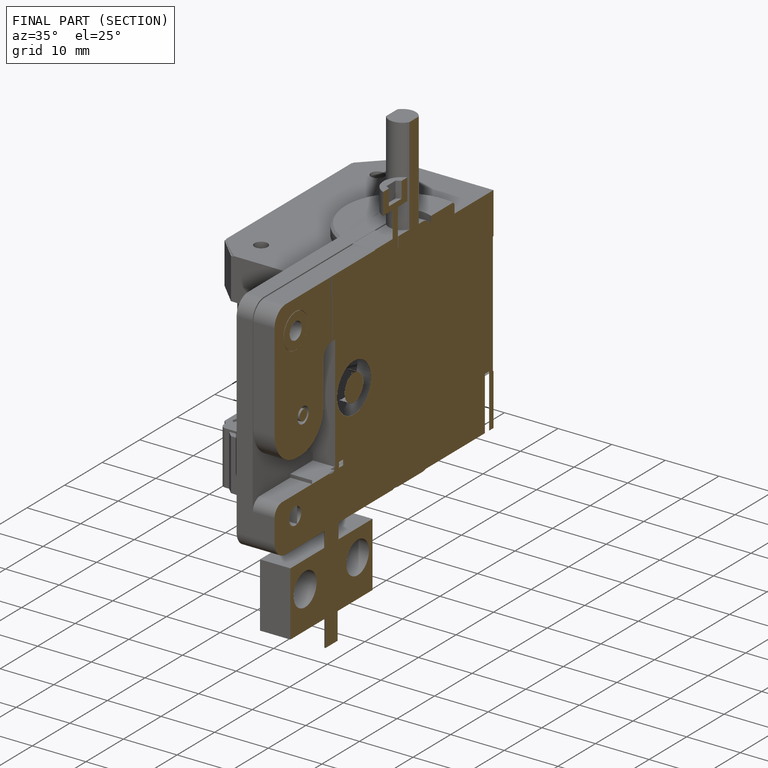
[diagram: finished part — half-section view (interior)]
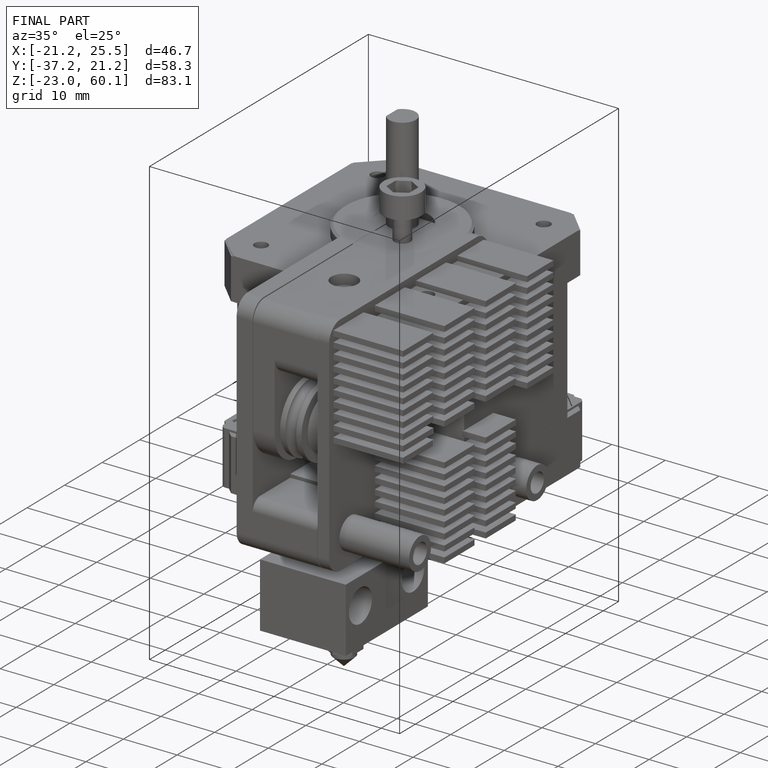
[diagram: finished part — iso view with bounding-box wireframe]
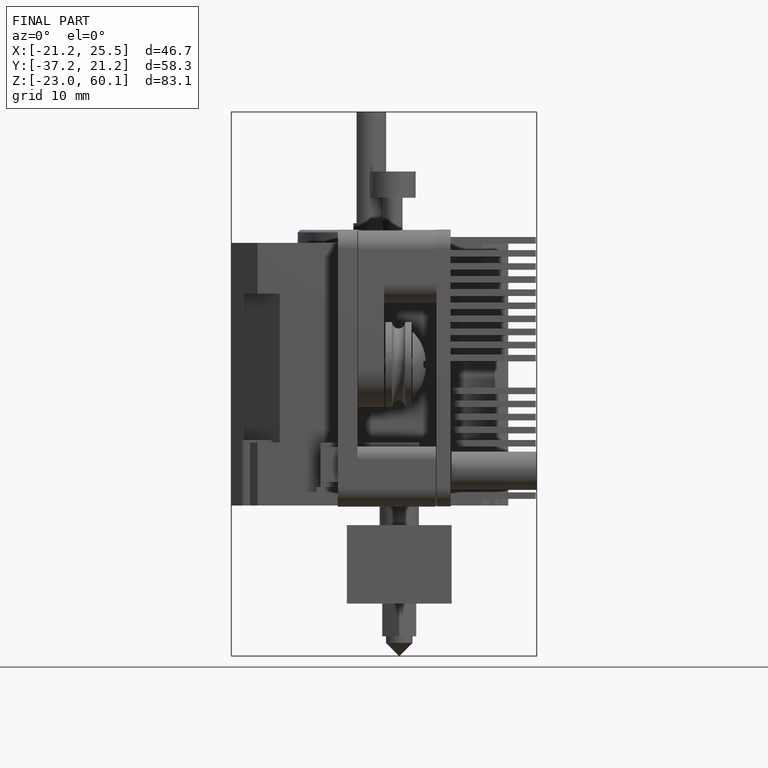
[diagram: finished part — front view with bounding-box wireframe]
